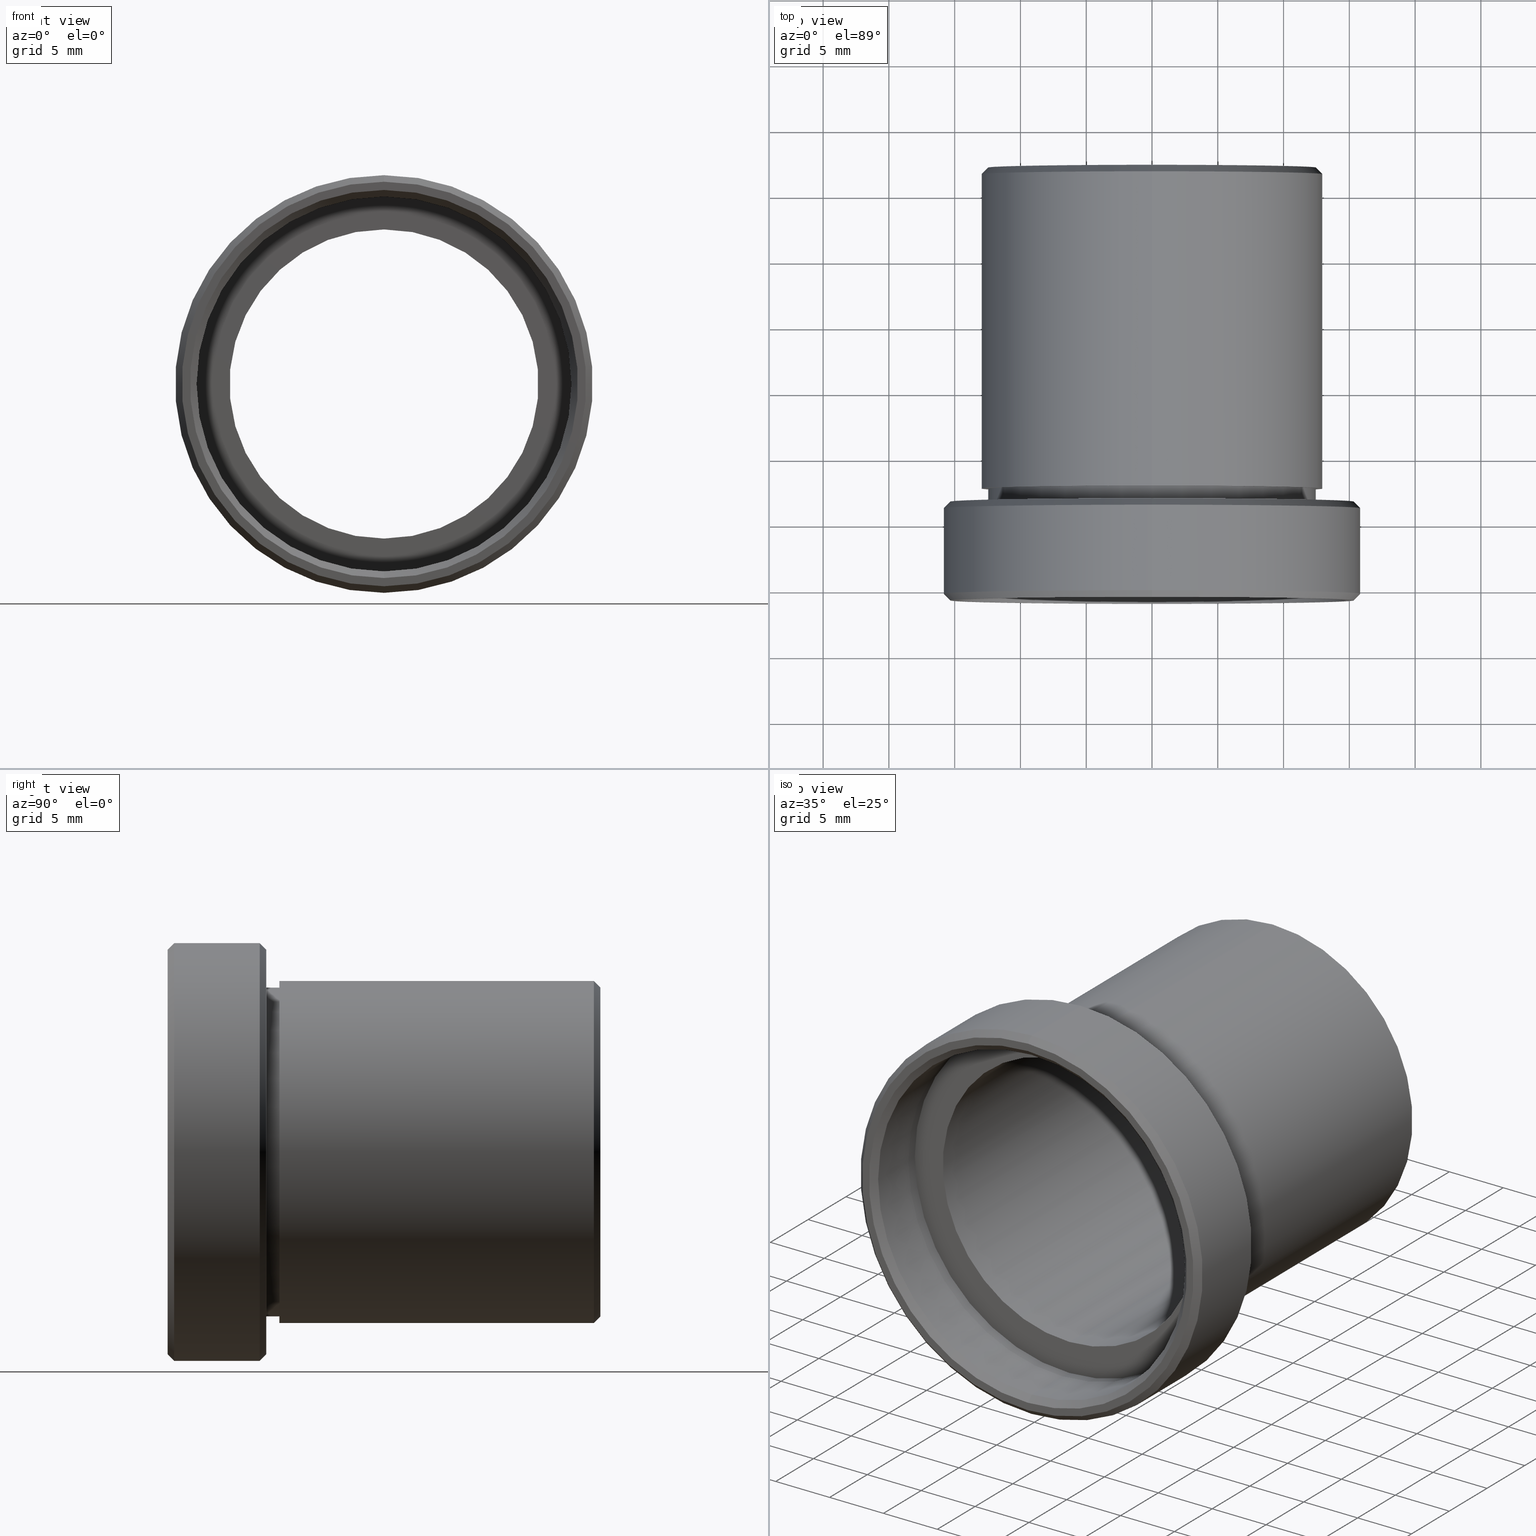
[diagram: canonical four-view strip — front | top / right | iso, engineering-drawing reading convention]
A machine part, canonical four-view strip (front | top / right | iso — engineering-drawing reading convention). The complete STEP part file that produces these views, byte-faithful:
ISO-10303-21;
HEADER;
FILE_DESCRIPTION (( 'STEP AP203' ),
    '1' );
FILE_NAME ('505004.STEP',
    '2019-09-12T03:27:38',
    ( '' ),
    ( '' ),
    'SwSTEP 2.0',
    'SolidWorks 2016',
    '' );
FILE_SCHEMA (( 'CONFIG_CONTROL_DESIGN' ));
ENDSEC;

DATA;
#1 = DIRECTION ( 'NONE',  ( -0.0000000000000000000, 1.000000000000000000, -0.0000000000000000000 ) ) ;
#2 = ORIENTED_EDGE ( 'NONE', *, *, #594, .T. ) ;
#3 = VECTOR ( 'NONE', #88, 1000.000000000000000 ) ;
#4 = EDGE_LOOP ( 'NONE', ( #743, #340, #2, #622 ) ) ;
#5 = AXIS2_PLACEMENT_3D ( 'NONE', #869, #455, #395 ) ;
#6 = CARTESIAN_POINT ( 'NONE',  ( 1.944126793646423200E-015, 1.142854174566894300, 15.87500000000000000 ) ) ;
#7 = CARTESIAN_POINT ( 'NONE',  ( 0.0000000000000000000, -5.857145825433105000, -14.75000000000000900 ) ) ;
#8 = AXIS2_PLACEMENT_3D ( 'NONE', #141, #829, #478 ) ;
#9 = LOCAL_TIME ( 11, 27, 38.00000000000000000, #555 ) ;
#10 = EDGE_LOOP ( 'NONE', ( #842, #157, #873, #12 ) ) ;
#11 = VECTOR ( 'NONE', #600, 1000.000000000000000 ) ;
#12 = ORIENTED_EDGE ( 'NONE', *, *, #623, .F. ) ;
#13 = CARTESIAN_POINT ( 'NONE',  ( 1.469576158976824500E-015, 26.54285417456689400, -11.75000000000000500 ) ) ;
#14 = ORIENTED_EDGE ( 'NONE', *, *, #305, .T. ) ;
#15 = DIRECTION ( 'NONE',  ( -0.0000000000000000000, 1.000000000000000000, -0.0000000000000000000 ) ) ;
#16 = DIRECTION ( 'NONE',  ( -0.0000000000000000000, 1.000000000000000000, -0.0000000000000000000 ) ) ;
#17 = CARTESIAN_POINT ( 'NONE',  ( 0.0000000000000000000, -5.857145825433105000, 0.0000000000000000000 ) ) ;
#18 = AXIS2_PLACEMENT_3D ( 'NONE', #755, #135, #201 ) ;
#19 = ORIENTED_EDGE ( 'NONE', *, *, #564, .T. ) ;
#20 = CIRCLE ( 'NONE', #782, 12.50000000000000500 ) ;
#21 = CLOSED_SHELL ( 'NONE', ( #234, #96, #778, #792, #514, #707, #639, #584, #99, #649, #362, #163, #439, #22, #519, #226, #169, #436, #716, #371, #654, #89, #504, #377, #590, #301, #574, #724 ) ) ;
#22 = ADVANCED_FACE ( 'NONE', ( #618 ), #659, .T. ) ;
#23 = EDGE_CURVE ( 'NONE', #723, #479, #738, .T. ) ;
#24 = DIRECTION ( 'NONE',  ( 0.0000000000000000000, 0.0000000000000000000, 1.000000000000000000 ) ) ;
#25 = MECHANICAL_CONTEXT ( 'NONE', #297, 'mechanical' ) ;
#26 = CC_DESIGN_PERSON_AND_ORGANIZATION_ASSIGNMENT ( #717, #307, ( #734 ) ) ;
#27 = DATE_AND_TIME ( #146, #325 ) ;
#28 = ORIENTED_EDGE ( 'NONE', *, *, #470, .F. ) ;
#29 = CIRCLE ( 'NONE', #35, 14.75000000000000900 ) ;
#30 =( NAMED_UNIT ( * ) PLANE_ANGLE_UNIT ( ) SI_UNIT ( $, .RADIAN. ) );
#31 = ORIENTED_EDGE ( 'NONE', *, *, #749, .T. ) ;
#32 = FACE_BOUND ( 'NONE', #57, .T. ) ;
#33 = ORIENTED_EDGE ( 'NONE', *, *, #704, .F. ) ;
#34 = PERSON_AND_ORGANIZATION_ROLE ( 'design_owner' ) ;
#35 = AXIS2_PLACEMENT_3D ( 'NONE', #259, #819, #612 ) ;
#36 = APPROVAL_ROLE ( '' ) ;
#37 = AXIS2_PLACEMENT_3D ( 'NONE', #776, #282, #705 ) ;
#38 = DIRECTION ( 'NONE',  ( -0.0000000000000000000, 1.000000000000000000, -0.0000000000000000000 ) ) ;
#39 = DATE_TIME_ROLE ( 'creation_date' ) ;
#40 = DIRECTION ( 'NONE',  ( 0.0000000000000000000, 0.0000000000000000000, 1.000000000000000000 ) ) ;
#41 = CONICAL_SURFACE ( 'NONE', #5, 15.87500000000000000, 0.7853981633974447300 ) ;
#42 = ORIENTED_EDGE ( 'NONE', *, *, #133, .T. ) ;
#43 = ORIENTED_EDGE ( 'NONE', *, *, #23, .F. ) ;
#44 = CARTESIAN_POINT ( 'NONE',  ( 0.0000000000000000000, 1.642854174566894800, 0.0000000000000000000 ) ) ;
#45 = DIRECTION ( 'NONE',  ( -0.0000000000000000000, 1.000000000000000000, -0.0000000000000000000 ) ) ;
#46 = AXIS2_PLACEMENT_3D ( 'NONE', #788, #517, #587 ) ;
#47 = DIRECTION ( 'NONE',  ( -0.0000000000000000000, 1.000000000000000000, -0.0000000000000000000 ) ) ;
#48 = DIRECTION ( 'NONE',  ( -0.0000000000000000000, 1.000000000000000000, -0.0000000000000000000 ) ) ;
#49 = PERSON_AND_ORGANIZATION ( #296, #794 ) ;
#50 = PERSON_AND_ORGANIZATION_ROLE ( 'creator' ) ;
#51 = EDGE_LOOP ( 'NONE', ( #207, #581, #472, #677 ) ) ;
#52 = EDGE_CURVE ( 'NONE', #189, #633, #71, .T. ) ;
#53 = LINE ( 'NONE', #686, #138 ) ;
#54 = CARTESIAN_POINT ( 'NONE',  ( 1.757368156776452400E-015, -0.3571458254331069700, -14.35000000000000500 ) ) ;
#55 = ORIENTED_EDGE ( 'NONE', *, *, #711, .F. ) ;
#56 = CARTESIAN_POINT ( 'NONE',  ( 0.0000000000000000000, 27.04285417456689400, 0.0000000000000000000 ) ) ;
#57 = EDGE_LOOP ( 'NONE', ( #754, #198 ) ) ;
#58 = AXIS2_PLACEMENT_3D ( 'NONE', #290, #356, #211 ) ;
#59 = DIRECTION ( 'NONE',  ( 0.0000000000000000000, 0.0000000000000000000, 1.000000000000000000 ) ) ;
#60 = CARTESIAN_POINT ( 'NONE',  ( 0.0000000000000000000, -5.357145825433104100, 0.0000000000000000000 ) ) ;
#61 = DIRECTION ( 'NONE',  ( -0.0000000000000000000, 1.000000000000000000, -0.0000000000000000000 ) ) ;
#62 = CARTESIAN_POINT ( 'NONE',  ( 0.0000000000000000000, 44.59859774529311900, 12.50000000000000500 ) ) ;
#63 = FACE_BOUND ( 'NONE', #216, .T. ) ;
#64 = CALENDAR_DATE ( 2019, 12, 9 ) ;
#65 = CARTESIAN_POINT ( 'NONE',  ( 0.0000000000000000000, 26.54285417456689100, 13.00000000000000400 ) ) ;
#66 = ORIENTED_EDGE ( 'NONE', *, *, #143, .F. ) ;
#67 = FACE_OUTER_BOUND ( 'NONE', #294, .T. ) ;
#68 = AXIS2_PLACEMENT_3D ( 'NONE', #275, #205, #836 ) ;
#69 = DIRECTION ( 'NONE',  ( 8.659560562354902000E-017, -0.7071067811865500200, 0.7071067811865450200 ) ) ;
#70 = LINE ( 'NONE', #376, #779 ) ;
#71 = LINE ( 'NONE', #844, #228 ) ;
#72 = LINE ( 'NONE', #640, #887 ) ;
#73 = VERTEX_POINT ( 'NONE', #871 ) ;
#74 = AXIS2_PLACEMENT_3D ( 'NONE', #485, #573, #350 ) ;
#75 = CARTESIAN_POINT ( 'NONE',  ( 1.944126793646423600E-015, -5.357145825433104100, -15.87500000000000400 ) ) ;
#76 = DIRECTION ( 'NONE',  ( 0.0000000000000000000, 0.0000000000000000000, 1.000000000000000000 ) ) ;
#77 = AXIS2_PLACEMENT_3D ( 'NONE', #280, #1, #553 ) ;
#78 = DIRECTION ( 'NONE',  ( 0.0000000000000000000, 0.0000000000000000000, 1.000000000000000000 ) ) ;
#79 = AXIS2_PLACEMENT_3D ( 'NONE', #17, #213, #703 ) ;
#80 = LOCAL_TIME ( 11, 27, 38.00000000000000000, #283 ) ;
#81 = CIRCLE ( 'NONE', #542, 15.87500000000000400 ) ;
#82 = CONICAL_SURFACE ( 'NONE', #79, 15.37500000000000400, 0.7853981633974482800 ) ;
#83 = ORIENTED_EDGE ( 'NONE', *, *, #450, .F. ) ;
#84 = VECTOR ( 'NONE', #895, 1000.000000000000000 ) ;
#85 = CARTESIAN_POINT ( 'NONE',  ( 1.438959988998140800E-015, 44.59859774529311900, -11.75000000000000500 ) ) ;
#86 = ORIENTED_EDGE ( 'NONE', *, *, #269, .T. ) ;
#87 = EDGE_CURVE ( 'NONE', #230, #94, #242, .T. ) ;
#88 = DIRECTION ( 'NONE',  ( 0.0000000000000000000, -0.7071067811865500200, -0.7071067811865450200 ) ) ;
#89 = ADVANCED_FACE ( 'NONE', ( #303 ), #265, .F. ) ;
#90 = DIRECTION ( 'NONE',  ( 0.0000000000000000000, 0.0000000000000000000, 1.000000000000000000 ) ) ;
#91 = LOCAL_TIME ( 11, 27, 38.00000000000000000, #274 ) ;
#92 = ORIENTED_EDGE ( 'NONE', *, *, #638, .F. ) ;
#93 = VECTOR ( 'NONE', #152, 1000.000000000000000 ) ;
#94 = VERTEX_POINT ( 'NONE', #609 ) ;
#95 = PERSON_AND_ORGANIZATION_ROLE ( 'design_owner' ) ;
#96 = ADVANCED_FACE ( 'NONE', ( #165 ), #41, .T. ) ;
#97 = CC_DESIGN_APPROVAL ( #747, ( #464 ) ) ;
#98 = CARTESIAN_POINT ( 'NONE',  ( 0.0000000000000000000, 1.142854174566894300, 15.87500000000000000 ) ) ;
#99 = ADVANCED_FACE ( 'NONE', ( #239 ), #839, .F. ) ;
#100 = CARTESIAN_POINT ( 'NONE',  ( 0.0000000000000000000, 1.142854174566894300, 0.0000000000000000000 ) ) ;
#101 = CIRCLE ( 'NONE', #109, 15.87500000000000000 ) ;
#102 = SHAPE_DEFINITION_REPRESENTATION ( #697, #223 ) ;
#103 = DIRECTION ( 'NONE',  ( 1.000000000000000000, 0.0000000000000000000, 0.0000000000000000000 ) ) ;
#104 = EDGE_LOOP ( 'NONE', ( #859, #140, #368, #888 ) ) ;
#105 = CIRCLE ( 'NONE', #651, 14.75000000000000900 ) ;
#106 = DIRECTION ( 'NONE',  ( 0.0000000000000000000, -0.0000000000000000000, -1.000000000000000000 ) ) ;
#107 = ORIENTED_EDGE ( 'NONE', *, *, #714, .F. ) ;
#108 = CARTESIAN_POINT ( 'NONE',  ( 1.745121688784979000E-015, -5.357145825433104100, 14.25000000000000500 ) ) ;
#109 = AXIS2_PLACEMENT_3D ( 'NONE', #100, #668, #178 ) ;
#110 = DIRECTION ( 'NONE',  ( 0.0000000000000000000, 0.0000000000000000000, -1.000000000000000000 ) ) ;
#111 = DIRECTION ( 'NONE',  ( -0.0000000000000000000, 1.000000000000000000, -0.0000000000000000000 ) ) ;
#112 = DIRECTION ( 'NONE',  ( 0.0000000000000000000, 0.0000000000000000000, 1.000000000000000000 ) ) ;
#113 = CARTESIAN_POINT ( 'NONE',  ( 14.25000000000000700, -1.357145825433105700, 0.0000000000000000000 ) ) ;
#114 = ORIENTED_EDGE ( 'NONE', *, *, #52, .T. ) ;
#115 = FACE_OUTER_BOUND ( 'NONE', #4, .T. ) ;
#116 = CARTESIAN_POINT ( 'NONE',  ( 13.00000000000000500, 2.642854174566895000, 0.0000000000000000000 ) ) ;
#117 = ORIENTED_EDGE ( 'NONE', *, *, #351, .F. ) ;
#118 = APPROVAL_STATUS ( 'not_yet_approved' ) ;
#119 = DIRECTION ( 'NONE',  ( 0.0000000000000000000, 0.0000000000000000000, 1.000000000000000000 ) ) ;
#120 = PLANE ( 'NONE',  #179 ) ;
#121 = AXIS2_PLACEMENT_3D ( 'NONE', #359, #15, #490 ) ;
#122 = CARTESIAN_POINT ( 'NONE',  ( 0.0000000000000000000, 44.59859774529311900, 14.35000000000000500 ) ) ;
#123 = DIRECTION ( 'NONE',  ( -0.0000000000000000000, 1.000000000000000000, -0.0000000000000000000 ) ) ;
#124 = CIRCLE ( 'NONE', #400, 14.25000000000000500 ) ;
#125 = AXIS2_PLACEMENT_3D ( 'NONE', #761, #134, #270 ) ;
#126 = COORDINATED_UNIVERSAL_TIME_OFFSET ( 8, 0, .AHEAD. ) ;
#127 = DIRECTION ( 'NONE',  ( 0.0000000000000000000, 0.0000000000000000000, 1.000000000000000000 ) ) ;
#128 = VERTEX_POINT ( 'NONE', #805 ) ;
#129 = LINE ( 'NONE', #820, #773 ) ;
#130 = VERTEX_POINT ( 'NONE', #246 ) ;
#131 = PRODUCT_DEFINITION_FORMATION_WITH_SPECIFIED_SOURCE ( '�κ�', '', #642, .NOT_KNOWN. ) ;
#132 = DIRECTION ( 'NONE',  ( 0.0000000000000000000, -0.7071067811865463500, -0.7071067811865487900 ) ) ;
#133 = EDGE_CURVE ( 'NONE', #633, #606, #656, .T. ) ;
#134 = DIRECTION ( 'NONE',  ( -0.0000000000000000000, 1.000000000000000000, -0.0000000000000000000 ) ) ;
#135 = DIRECTION ( 'NONE',  ( 0.0000000000000000000, -1.000000000000000000, 0.0000000000000000000 ) ) ;
#136 = CALENDAR_DATE ( 2019, 12, 9 ) ;
#137 = ORIENTED_EDGE ( 'NONE', *, *, #407, .F. ) ;
#138 = VECTOR ( 'NONE', #621, 1000.000000000000000 ) ;
#139 = AXIS2_PLACEMENT_3D ( 'NONE', #194, #268, #685 ) ;
#140 = ORIENTED_EDGE ( 'NONE', *, *, #202, .T. ) ;
#141 = CARTESIAN_POINT ( 'NONE',  ( 0.0000000000000000000, 44.59859774529311900, 0.0000000000000000000 ) ) ;
#142 = DIRECTION ( 'NONE',  ( -0.0000000000000000000, 1.000000000000000000, -0.0000000000000000000 ) ) ;
#143 = EDGE_CURVE ( 'NONE', #188, #525, #442, .T. ) ;
#144 = DIRECTION ( 'NONE',  ( -0.0000000000000000000, 1.000000000000000000, -0.0000000000000000000 ) ) ;
#145 = APPROVAL ( #576, 'δָ��' ) ;
#146 = CALENDAR_DATE ( 2019, 12, 9 ) ;
#147 = FACE_OUTER_BOUND ( 'NONE', #700, .T. ) ;
#148 = VERTEX_POINT ( 'NONE', #177 ) ;
#149 = CIRCLE ( 'NONE', #410, 15.37500000000000400 ) ;
#150 = VERTEX_POINT ( 'NONE', #731 ) ;
#151 = DIRECTION ( 'NONE',  ( -0.0000000000000000000, 1.000000000000000000, -0.0000000000000000000 ) ) ;
#152 = DIRECTION ( 'NONE',  ( -0.0000000000000000000, 1.000000000000000000, -0.0000000000000000000 ) ) ;
#153 = PERSON_AND_ORGANIZATION ( #296, #794 ) ;
#154 = VERTEX_POINT ( 'NONE', #451 ) ;
#155 = FACE_BOUND ( 'NONE', #423, .T. ) ;
#156 = CARTESIAN_POINT ( 'NONE',  ( 0.0000000000000000000, -0.3571458254331069700, 14.35000000000000500 ) ) ;
#157 = ORIENTED_EDGE ( 'NONE', *, *, #322, .T. ) ;
#158 = EDGE_CURVE ( 'NONE', #128, #718, #821, .T. ) ;
#159 = CARTESIAN_POINT ( 'NONE',  ( 0.0000000000000000000, 2.642854174566895900, 0.0000000000000000000 ) ) ;
#160 = DIRECTION ( 'NONE',  ( 0.0000000000000000000, 0.0000000000000000000, 1.000000000000000000 ) ) ;
#161 = PERSON_AND_ORGANIZATION ( #296, #794 ) ;
#162 = ORIENTED_EDGE ( 'NONE', *, *, #224, .F. ) ;
#163 = ADVANCED_FACE ( 'NONE', ( #284, #632 ), #605, .F. ) ;
#164 = ORIENTED_EDGE ( 'NONE', *, *, #494, .F. ) ;
#165 = FACE_OUTER_BOUND ( 'NONE', #276, .T. ) ;
#166 = EDGE_LOOP ( 'NONE', ( #556, #445, #209, #456 ) ) ;
#167 = DIRECTION ( 'NONE',  ( 0.0000000000000000000, -0.7071067811865450200, -0.7071067811865500200 ) ) ;
#168 = AXIS2_PLACEMENT_3D ( 'NONE', #113, #170, #106 ) ;
#169 = ADVANCED_FACE ( 'NONE', ( #742 ), #559, .F. ) ;
#170 = DIRECTION ( 'NONE',  ( 0.0000000000000000000, -1.000000000000000000, 0.0000000000000000000 ) ) ;
#171 = CARTESIAN_POINT ( 'NONE',  ( 0.0000000000000000000, 1.142854174566894300, 0.0000000000000000000 ) ) ;
#172 = CC_DESIGN_PERSON_AND_ORGANIZATION_ASSIGNMENT ( #252, #582, ( #131 ) ) ;
#173 = DATE_AND_TIME ( #353, #196 ) ;
#174 = ORIENTED_EDGE ( 'NONE', *, *, #515, .F. ) ;
#175 = FACE_BOUND ( 'NONE', #415, .T. ) ;
#176 = ORIENTED_EDGE ( 'NONE', *, *, #351, .T. ) ;
#177 = CARTESIAN_POINT ( 'NONE',  ( 0.0000000000000000000, -1.357145825433107900, 14.25000000000000700 ) ) ;
#178 = DIRECTION ( 'NONE',  ( 0.0000000000000000000, 0.0000000000000000000, 1.000000000000000000 ) ) ;
#179 = AXIS2_PLACEMENT_3D ( 'NONE', #267, #881, #608 ) ;
#180 = DIRECTION ( 'NONE',  ( -0.0000000000000000000, 1.000000000000000000, 0.0000000000000000000 ) ) ;
#181 = APPROVAL_ROLE ( '' ) ;
#182 = EDGE_CURVE ( 'NONE', #154, #607, #105, .T. ) ;
#183 = CARTESIAN_POINT ( 'NONE',  ( 0.0000000000000000000, 1.142854174566894300, 0.0000000000000000000 ) ) ;
#184 = PERSON_AND_ORGANIZATION ( #296, #794 ) ;
#185 = ORIENTED_EDGE ( 'NONE', *, *, #202, .F. ) ;
#186 = CYLINDRICAL_SURFACE ( 'NONE', #204, 14.25000000000000500 ) ;
#187 = CC_DESIGN_DATE_AND_TIME_ASSIGNMENT ( #567, #361, ( #464 ) ) ;
#188 = VERTEX_POINT ( 'NONE', #449 ) ;
#189 = VERTEX_POINT ( 'NONE', #530 ) ;
#190 = DIRECTION ( 'NONE',  ( -0.0000000000000000000, 1.000000000000000000, -0.0000000000000000000 ) ) ;
#191 = CARTESIAN_POINT ( 'NONE',  ( 0.0000000000000000000, 44.59859774529311900, 14.25000000000000500 ) ) ;
#192 = CARTESIAN_POINT ( 'NONE',  ( 0.0000000000000000000, 2.642854174566895900, 0.0000000000000000000 ) ) ;
#193 = CARTESIAN_POINT ( 'NONE',  ( 0.0000000000000000000, 27.04285417456689400, 12.25000000000000500 ) ) ;
#194 = CARTESIAN_POINT ( 'NONE',  ( 0.0000000000000000000, 27.04285417456689100, 0.0000000000000000000 ) ) ;
#195 = FACE_OUTER_BOUND ( 'NONE', #396, .T. ) ;
#196 = LOCAL_TIME ( 11, 27, 38.00000000000000000, #602 ) ;
#197 = CARTESIAN_POINT ( 'NONE',  ( 0.0000000000000000000, 44.59859774529311900, 0.0000000000000000000 ) ) ;
#198 = ORIENTED_EDGE ( 'NONE', *, *, #897, .T. ) ;
#199 = CIRCLE ( 'NONE', #58, 13.00000000000000500 ) ;
#200 = EDGE_LOOP ( 'NONE', ( #66, #31, #712, #83 ) ) ;
#201 = DIRECTION ( 'NONE',  ( 0.0000000000000000000, 0.0000000000000000000, -1.000000000000000000 ) ) ;
#202 = EDGE_CURVE ( 'NONE', #150, #783, #511, .T. ) ;
#203 = DIRECTION ( 'NONE',  ( 8.659560562354948900E-017, -0.7071067811865463500, 0.7071067811865487900 ) ) ;
#204 = AXIS2_PLACEMENT_3D ( 'NONE', #775, #493, #289 ) ;
#205 = DIRECTION ( 'NONE',  ( 0.0000000000000000000, -1.000000000000000000, 0.0000000000000000000 ) ) ;
#206 = COORDINATED_UNIVERSAL_TIME_OFFSET ( 8, 0, .AHEAD. ) ;
#207 = ORIENTED_EDGE ( 'NONE', *, *, #614, .F. ) ;
#208 = FACE_BOUND ( 'NONE', #469, .T. ) ;
#209 = ORIENTED_EDGE ( 'NONE', *, *, #352, .F. ) ;
#210 = ORIENTED_EDGE ( 'NONE', *, *, #224, .T. ) ;
#211 = DIRECTION ( 'NONE',  ( 0.0000000000000000000, 0.0000000000000000000, 1.000000000000000000 ) ) ;
#212 = EDGE_CURVE ( 'NONE', #130, #863, #349, .T. ) ;
#213 = DIRECTION ( 'NONE',  ( -0.0000000000000000000, 1.000000000000000000, -0.0000000000000000000 ) ) ;
#214 = FACE_OUTER_BOUND ( 'NONE', #104, .T. ) ;
#215 = PERSON_AND_ORGANIZATION ( #296, #794 ) ;
#216 = EDGE_LOOP ( 'NONE', ( #331, #137 ) ) ;
#217 = EDGE_CURVE ( 'NONE', #606, #73, #262, .T. ) ;
#218 = VECTOR ( 'NONE', #884, 1000.000000000000000 ) ;
#219 = ORIENTED_EDGE ( 'NONE', *, *, #614, .T. ) ;
#220 = DIRECTION ( 'NONE',  ( 0.0000000000000000000, 0.0000000000000000000, 1.000000000000000000 ) ) ;
#221 = AXIS2_PLACEMENT_3D ( 'NONE', #551, #409, #545 ) ;
#222 = CARTESIAN_POINT ( 'NONE',  ( 1.944126793646423200E-015, 1.142854174566894300, -15.87500000000000000 ) ) ;
#223 = ADVANCED_BREP_SHAPE_REPRESENTATION ( '505004', ( #806, #790 ), #271 ) ;
#224 = EDGE_CURVE ( 'NONE', #364, #723, #402, .T. ) ;
#225 = APPROVAL_STATUS ( 'not_yet_approved' ) ;
#226 = ADVANCED_FACE ( 'NONE', ( #67 ), #592, .F. ) ;
#227 = APPROVAL_PERSON_ORGANIZATION ( #708, #673, #650 ) ;
#228 = VECTOR ( 'NONE', #16, 1000.000000000000000 ) ;
#229 = LINE ( 'NONE', #391, #218 ) ;
#230 = VERTEX_POINT ( 'NONE', #65 ) ;
#231 = EDGE_CURVE ( 'NONE', #578, #863, #129, .T. ) ;
#232 = EDGE_LOOP ( 'NONE', ( #886, #164, #114, #42 ) ) ;
#233 = CC_DESIGN_APPROVAL ( #145, ( #131 ) ) ;
#234 = ADVANCED_FACE ( 'NONE', ( #701 ), #722, .T. ) ;
#235 = CARTESIAN_POINT ( 'NONE',  ( 0.0000000000000000000, 26.54285417456689100, 0.0000000000000000000 ) ) ;
#236 = APPROVAL_ROLE ( '' ) ;
#237 = EDGE_CURVE ( 'NONE', #148, #256, #329, .T. ) ;
#238 = APPLICATION_PROTOCOL_DEFINITION ( 'international standard', 'config_control_design', 1994, #785 ) ;
#239 = FACE_OUTER_BOUND ( 'NONE', #382, .T. ) ;
#240 = LOCAL_TIME ( 11, 27, 38.00000000000000000, #126 ) ;
#241 = VERTEX_POINT ( 'NONE', #544 ) ;
#242 = CIRCLE ( 'NONE', #787, 13.00000000000000400 ) ;
#243 = ORIENTED_EDGE ( 'NONE', *, *, #308, .T. ) ;
#244 = CARTESIAN_POINT ( 'NONE',  ( 0.0000000000000000000, 27.04285417456689100, -12.50000000000000000 ) ) ;
#245 = AXIS2_PLACEMENT_3D ( 'NONE', #304, #38, #595 ) ;
#246 = CARTESIAN_POINT ( 'NONE',  ( 0.0000000000000000000, 2.642854174566895900, 12.50000000000000500 ) ) ;
#247 = DIRECTION ( 'NONE',  ( 0.0000000000000000000, 0.0000000000000000000, 1.000000000000000000 ) ) ;
#248 = CARTESIAN_POINT ( 'NONE',  ( 0.0000000000000000000, 26.54285417456689100, 0.0000000000000000000 ) ) ;
#249 = DIRECTION ( 'NONE',  ( 0.0000000000000000000, 0.0000000000000000000, -1.000000000000000000 ) ) ;
#250 = PERSON_AND_ORGANIZATION ( #296, #794 ) ;
#251 = AXIS2_PLACEMENT_3D ( 'NONE', #428, #570, #78 ) ;
#252 = PERSON_AND_ORGANIZATION ( #296, #794 ) ;
#253 = ORIENTED_EDGE ( 'NONE', *, *, #759, .T. ) ;
#254 = CYLINDRICAL_SURFACE ( 'NONE', #77, 11.75000000000000500 ) ;
#255 = DIRECTION ( 'NONE',  ( 8.659560562354931600E-017, 0.7071067811865475700, -0.7071067811865474600 ) ) ;
#256 = VERTEX_POINT ( 'NONE', #263 ) ;
#257 = CARTESIAN_POINT ( 'NONE',  ( 0.0000000000000000000, 27.04285417456689400, 0.0000000000000000000 ) ) ;
#258 = DIRECTION ( 'NONE',  ( 0.0000000000000000000, 0.0000000000000000000, 1.000000000000000000 ) ) ;
#259 = CARTESIAN_POINT ( 'NONE',  ( 0.0000000000000000000, -5.857145825433105000, 0.0000000000000000000 ) ) ;
#260 = AXIS2_PLACEMENT_3D ( 'NONE', #56, #386, #877 ) ;
#261 = CARTESIAN_POINT ( 'NONE',  ( 1.882894453689056100E-015, -5.857145825433105000, -15.37500000000000400 ) ) ;
#262 = LINE ( 'NONE', #540, #466 ) ;
#263 = CARTESIAN_POINT ( 'NONE',  ( 1.745121688784979400E-015, -1.357145825433107900, -14.25000000000000900 ) ) ;
#264 = ORIENTED_EDGE ( 'NONE', *, *, #846, .T. ) ;
#265 = CONICAL_SURFACE ( 'NONE', #695, 14.25000000000000500, 0.7853981633974518300 ) ;
#266 = VERTEX_POINT ( 'NONE', #896 ) ;
#267 = CARTESIAN_POINT ( 'NONE',  ( 15.37500000000000400, -5.857145825433104100, 0.0000000000000000000 ) ) ;
#268 = DIRECTION ( 'NONE',  ( -0.0000000000000000000, 1.000000000000000000, -0.0000000000000000000 ) ) ;
#269 = EDGE_CURVE ( 'NONE', #397, #528, #486, .T. ) ;
#270 = DIRECTION ( 'NONE',  ( 0.0000000000000000000, 0.0000000000000000000, 1.000000000000000000 ) ) ;
#271 =( GEOMETRIC_REPRESENTATION_CONTEXT ( 3 ) GLOBAL_UNCERTAINTY_ASSIGNED_CONTEXT ( ( #619 ) ) GLOBAL_UNIT_ASSIGNED_CONTEXT ( ( #789, #30, #725 ) ) REPRESENTATION_CONTEXT ( 'NONE', 'WORKASPACE' ) );
#272 = CARTESIAN_POINT ( 'NONE',  ( 0.0000000000000000000, 1.642854174566894800, 0.0000000000000000000 ) ) ;
#273 = AXIS2_PLACEMENT_3D ( 'NONE', #197, #142, #554 ) ;
#274 = COORDINATED_UNIVERSAL_TIME_OFFSET ( 8, 0, .AHEAD. ) ;
#275 = CARTESIAN_POINT ( 'NONE',  ( 12.50000000000000500, 1.642854174566894800, 0.0000000000000000000 ) ) ;
#276 = EDGE_LOOP ( 'NONE', ( #709, #219, #593, #291 ) ) ;
#277 = FACE_OUTER_BOUND ( 'NONE', #346, .T. ) ;
#278 = ORIENTED_EDGE ( 'NONE', *, *, #744, .T. ) ;
#279 = EDGE_CURVE ( 'NONE', #525, #188, #124, .T. ) ;
#280 = CARTESIAN_POINT ( 'NONE',  ( 0.0000000000000000000, 44.59859774529311900, 0.0000000000000000000 ) ) ;
#281 = APPROVAL ( #453, 'δָ��' ) ;
#282 = DIRECTION ( 'NONE',  ( -0.0000000000000000000, 1.000000000000000000, -0.0000000000000000000 ) ) ;
#283 = COORDINATED_UNIVERSAL_TIME_OFFSET ( 8, 0, .AHEAD. ) ;
#284 = FACE_OUTER_BOUND ( 'NONE', #580, .T. ) ;
#285 = APPROVAL_DATE_TIME ( #467, #673 ) ;
#286 = ORIENTED_EDGE ( 'NONE', *, *, #470, .T. ) ;
#287 = CONICAL_SURFACE ( 'NONE', #620, 15.87500000000000000, 0.7853981633974447300 ) ;
#288 = CARTESIAN_POINT ( 'NONE',  ( 0.0000000000000000000, 27.04285417456689400, 0.0000000000000000000 ) ) ;
#289 = DIRECTION ( 'NONE',  ( 0.0000000000000000000, 0.0000000000000000000, 1.000000000000000000 ) ) ;
#290 = CARTESIAN_POINT ( 'NONE',  ( 0.0000000000000000000, 2.642854174566895900, 0.0000000000000000000 ) ) ;
#291 = ORIENTED_EDGE ( 'NONE', *, *, #688, .F. ) ;
#292 = EDGE_CURVE ( 'NONE', #784, #831, #101, .T. ) ;
#293 = VECTOR ( 'NONE', #132, 1000.000000000000000 ) ;
#294 = EDGE_LOOP ( 'NONE', ( #510, #366, #568, #278 ) ) ;
#295 = CC_DESIGN_PERSON_AND_ORGANIZATION_ASSIGNMENT ( #589, #95, ( #642 ) ) ;
#296 = PERSON ( 'δָ��', 'δָ��', 'δָ��', ('δָ��'), ('δָ��'), ('δָ��') ) ;
#297 = APPLICATION_CONTEXT ( 'configuration controlled 3d designs of mechanical parts and assemblies' ) ;
#298 = LINE ( 'NONE', #108, #769 ) ;
#299 = PERSON_AND_ORGANIZATION ( #296, #794 ) ;
#300 = CARTESIAN_POINT ( 'NONE',  ( 1.757368156776452400E-015, -1.357145825433107900, -14.35000000000000500 ) ) ;
#301 = ADVANCED_FACE ( 'NONE', ( #681 ), #287, .T. ) ;
#302 = ORIENTED_EDGE ( 'NONE', *, *, #332, .T. ) ;
#303 = FACE_OUTER_BOUND ( 'NONE', #541, .T. ) ;
#304 = CARTESIAN_POINT ( 'NONE',  ( 0.0000000000000000000, -1.357145825433107900, 0.0000000000000000000 ) ) ;
#305 = EDGE_CURVE ( 'NONE', #718, #128, #588, .T. ) ;
#306 = ORIENTED_EDGE ( 'NONE', *, *, #87, .T. ) ;
#307 = PERSON_AND_ORGANIZATION_ROLE ( 'creator' ) ;
#308 = EDGE_CURVE ( 'NONE', #528, #397, #793, .T. ) ;
#309 = PLANE ( 'NONE',  #756 ) ;
#310 = CARTESIAN_POINT ( 'NONE',  ( 0.0000000000000000000, -5.357145825433104100, 0.0000000000000000000 ) ) ;
#311 = AXIS2_PLACEMENT_3D ( 'NONE', #720, #648, #502 ) ;
#312 = DATE_TIME_ROLE ( 'classification_date' ) ;
#313 = CARTESIAN_POINT ( 'NONE',  ( 1.944126793646423200E-015, 44.59859774529311900, -15.87500000000000000 ) ) ;
#314 = LOCAL_TIME ( 11, 27, 38.00000000000000000, #689 ) ;
#315 = ORIENTED_EDGE ( 'NONE', *, *, #231, .T. ) ;
#316 = VECTOR ( 'NONE', #767, 1000.000000000000000 ) ;
#317 = CARTESIAN_POINT ( 'NONE',  ( 0.0000000000000000000, 1.642854174566894800, 0.0000000000000000000 ) ) ;
#318 = ORIENTED_EDGE ( 'NONE', *, *, #450, .T. ) ;
#319 = DIRECTION ( 'NONE',  ( -0.0000000000000000000, 1.000000000000000000, -0.0000000000000000000 ) ) ;
#320 = AXIS2_PLACEMENT_3D ( 'NONE', #192, #190, #59 ) ;
#321 = DIRECTION ( 'NONE',  ( -0.0000000000000000000, 1.000000000000000000, 0.0000000000000000000 ) ) ;
#322 = EDGE_CURVE ( 'NONE', #682, #784, #471, .T. ) ;
#323 = CARTESIAN_POINT ( 'NONE',  ( 0.0000000000000000000, 44.59859774529311900, 0.0000000000000000000 ) ) ;
#324 = AXIS2_PLACEMENT_3D ( 'NONE', #848, #427, #76 ) ;
#325 = LOCAL_TIME ( 11, 27, 38.00000000000000000, #206 ) ;
#326 = ORIENTED_EDGE ( 'NONE', *, *, #601, .F. ) ;
#327 = VECTOR ( 'NONE', #69, 1000.000000000000000 ) ;
#328 = EDGE_LOOP ( 'NONE', ( #780, #435, #210, #666 ) ) ;
#329 = CIRCLE ( 'NONE', #426, 14.25000000000000700 ) ;
#330 = DIRECTION ( 'NONE',  ( 8.659560562354931600E-017, 0.7071067811865475700, -0.7071067811865474600 ) ) ;
#331 = ORIENTED_EDGE ( 'NONE', *, *, #237, .F. ) ;
#332 = EDGE_CURVE ( 'NONE', #364, #813, #615, .T. ) ;
#333 = CARTESIAN_POINT ( 'NONE',  ( 0.0000000000000000000, 27.04285417456689400, 0.0000000000000000000 ) ) ;
#334 = CARTESIAN_POINT ( 'NONE',  ( 1.438959988998140800E-015, -0.3571458254331069700, -11.75000000000000500 ) ) ;
#335 = CARTESIAN_POINT ( 'NONE',  ( 0.0000000000000000000, -5.857145825433105000, 0.0000000000000000000 ) ) ;
#336 = AXIS2_PLACEMENT_3D ( 'NONE', #60, #672, #684 ) ;
#337 = COORDINATED_UNIVERSAL_TIME_OFFSET ( 8, 0, .AHEAD. ) ;
#338 = ORIENTED_EDGE ( 'NONE', *, *, #797, .T. ) ;
#339 = VECTOR ( 'NONE', #203, 1000.000000000000000 ) ;
#340 = ORIENTED_EDGE ( 'NONE', *, *, #732, .T. ) ;
#341 = CARTESIAN_POINT ( 'NONE',  ( 1.592040838891559500E-015, 26.54285417456689100, 13.00000000000000400 ) ) ;
#342 = EDGE_CURVE ( 'NONE', #783, #150, #149, .T. ) ;
#343 = CC_DESIGN_PERSON_AND_ORGANIZATION_ASSIGNMENT ( #215, #369, ( #464 ) ) ;
#344 = CALENDAR_DATE ( 2019, 12, 9 ) ;
#345 = DIRECTION ( 'NONE',  ( -0.0000000000000000000, 1.000000000000000000, -0.0000000000000000000 ) ) ;
#346 = EDGE_LOOP ( 'NONE', ( #491, #752, #306, #28 ) ) ;
#347 = CYLINDRICAL_SURFACE ( 'NONE', #857, 15.87500000000000000 ) ;
#348 = ORIENTED_EDGE ( 'NONE', *, *, #292, .F. ) ;
#349 = CIRCLE ( 'NONE', #320, 12.50000000000000500 ) ;
#350 = DIRECTION ( 'NONE',  ( 0.0000000000000000000, 0.0000000000000000000, 1.000000000000000000 ) ) ;
#351 = EDGE_CURVE ( 'NONE', #525, #154, #298, .T. ) ;
#352 = EDGE_CURVE ( 'NONE', #512, #682, #81, .T. ) ;
#353 = CALENDAR_DATE ( 2019, 12, 9 ) ;
#354 = EDGE_LOOP ( 'NONE', ( #625, #185 ) ) ;
#355 = CIRCLE ( 'NONE', #484, 14.35000000000000500 ) ;
#356 = DIRECTION ( 'NONE',  ( -0.0000000000000000000, 1.000000000000000000, -0.0000000000000000000 ) ) ;
#357 = SECURITY_CLASSIFICATION ( '', '', #372 ) ;
#358 = ORIENTED_EDGE ( 'NONE', *, *, #548, .F. ) ;
#359 = CARTESIAN_POINT ( 'NONE',  ( 0.0000000000000000000, -5.357145825433104100, 0.0000000000000000000 ) ) ;
#360 = AXIS2_PLACEMENT_3D ( 'NONE', #690, #758, #834 ) ;
#361 = DATE_TIME_ROLE ( 'creation_date' ) ;
#362 = ADVANCED_FACE ( 'NONE', ( #421 ), #823, .T. ) ;
#363 = DATE_AND_TIME ( #344, #9 ) ;
#364 = VERTEX_POINT ( 'NONE', #529 ) ;
#365 = CYLINDRICAL_SURFACE ( 'NONE', #324, 14.35000000000000500 ) ;
#366 = ORIENTED_EDGE ( 'NONE', *, *, #133, .F. ) ;
#367 = FACE_OUTER_BOUND ( 'NONE', #702, .T. ) ;
#368 = ORIENTED_EDGE ( 'NONE', *, *, #475, .T. ) ;
#369 = PERSON_AND_ORGANIZATION_ROLE ( 'creator' ) ;
#370 = CC_DESIGN_PERSON_AND_ORGANIZATION_ASSIGNMENT ( #696, #878, ( #627 ) ) ;
#371 = ADVANCED_FACE ( 'NONE', ( #63, #195 ), #655, .F. ) ;
#372 = SECURITY_CLASSIFICATION_LEVEL ( 'unclassified' ) ;
#373 = EDGE_CURVE ( 'NONE', #813, #479, #889, .T. ) ;
#374 = DIRECTION ( 'NONE',  ( -0.0000000000000000000, 1.000000000000000000, -0.0000000000000000000 ) ) ;
#375 = DIRECTION ( 'NONE',  ( 0.0000000000000000000, -1.000000000000000000, 0.0000000000000000000 ) ) ;
#376 = CARTESIAN_POINT ( 'NONE',  ( 1.592040838891559700E-015, 44.59859774529311900, -13.00000000000000500 ) ) ;
#377 = ADVANCED_FACE ( 'NONE', ( #214 ), #446, .T. ) ;
#378 = CARTESIAN_POINT ( 'NONE',  ( 1.757368156776452400E-015, 44.59859774529311900, -14.35000000000000500 ) ) ;
#379 = DIRECTION ( 'NONE',  ( 0.0000000000000000000, 0.0000000000000000000, 1.000000000000000000 ) ) ;
#380 = FACE_OUTER_BOUND ( 'NONE', #876, .T. ) ;
#381 = DATE_AND_TIME ( #546, #840 ) ;
#382 = EDGE_LOOP ( 'NONE', ( #643, #414, #796, #772 ) ) ;
#383 = FACE_OUTER_BOUND ( 'NONE', #354, .T. ) ;
#384 = AXIS2_PLACEMENT_3D ( 'NONE', #317, #45, #534 ) ;
#385 = ORIENTED_EDGE ( 'NONE', *, *, #797, .F. ) ;
#386 = DIRECTION ( 'NONE',  ( -0.0000000000000000000, 1.000000000000000000, -0.0000000000000000000 ) ) ;
#387 = DIRECTION ( 'NONE',  ( 0.0000000000000000000, 0.0000000000000000000, 1.000000000000000000 ) ) ;
#388 = DIRECTION ( 'NONE',  ( 0.0000000000000000000, 0.0000000000000000000, 1.000000000000000000 ) ) ;
#389 = DIRECTION ( 'NONE',  ( 0.0000000000000000000, -1.000000000000000000, 0.0000000000000000000 ) ) ;
#390 = CC_DESIGN_DATE_AND_TIME_ASSIGNMENT ( #27, #39, ( #882 ) ) ;
#391 = CARTESIAN_POINT ( 'NONE',  ( 0.0000000000000000000, -5.857145825433105000, 15.37500000000000400 ) ) ;
#392 = LINE ( 'NONE', #583, #477 ) ;
#393 = ORIENTED_EDGE ( 'NONE', *, *, #143, .T. ) ;
#394 = FACE_OUTER_BOUND ( 'NONE', #891, .T. ) ;
#395 = DIRECTION ( 'NONE',  ( 0.0000000000000000000, 0.0000000000000000000, -1.000000000000000000 ) ) ;
#396 = EDGE_LOOP ( 'NONE', ( #302, #558 ) ) ;
#397 = VERTEX_POINT ( 'NONE', #244 ) ;
#398 = CARTESIAN_POINT ( 'NONE',  ( 0.0000000000000000000, -5.357145825433104100, 15.87500000000000400 ) ) ;
#399 = PLANE ( 'NONE',  #523 ) ;
#400 = AXIS2_PLACEMENT_3D ( 'NONE', #875, #802, #387 ) ;
#401 = DIRECTION ( 'NONE',  ( 0.0000000000000000000, -1.000000000000000000, 0.0000000000000000000 ) ) ;
#402 = LINE ( 'NONE', #122, #751 ) ;
#403 = PERSON_AND_ORGANIZATION ( #296, #794 ) ;
#404 = ORIENTED_EDGE ( 'NONE', *, *, #814, .F. ) ;
#405 = CIRCLE ( 'NONE', #770, 13.00000000000000500 ) ;
#406 = ORIENTED_EDGE ( 'NONE', *, *, #269, .F. ) ;
#407 = EDGE_CURVE ( 'NONE', #256, #148, #617, .T. ) ;
#408 = CC_DESIGN_PERSON_AND_ORGANIZATION_ASSIGNMENT ( #657, #786, ( #357 ) ) ;
#409 = DIRECTION ( 'NONE',  ( -0.0000000000000000000, 1.000000000000000000, -0.0000000000000000000 ) ) ;
#410 = AXIS2_PLACEMENT_3D ( 'NONE', #518, #598, #454 ) ;
#411 = PLANE ( 'NONE',  #68 ) ;
#412 = ORIENTED_EDGE ( 'NONE', *, *, #182, .F. ) ;
#413 = CIRCLE ( 'NONE', #74, 14.35000000000000500 ) ;
#414 = ORIENTED_EDGE ( 'NONE', *, *, #217, .T. ) ;
#415 = EDGE_LOOP ( 'NONE', ( #497, #174 ) ) ;
#416 = CC_DESIGN_SECURITY_CLASSIFICATION ( #627, ( #734 ) ) ;
#417 = DESIGN_CONTEXT ( 'detailed design', #785, 'design' ) ;
#418 = DIRECTION ( 'NONE',  ( -0.0000000000000000000, 1.000000000000000000, -0.0000000000000000000 ) ) ;
#419 = EDGE_CURVE ( 'NONE', #831, #784, #489, .T. ) ;
#420 = DIRECTION ( 'NONE',  ( -0.0000000000000000000, 1.000000000000000000, -0.0000000000000000000 ) ) ;
#421 = FACE_OUTER_BOUND ( 'NONE', #694, .T. ) ;
#422 = APPROVAL_PERSON_ORGANIZATION ( #299, #747, #866 ) ;
#423 = EDGE_LOOP ( 'NONE', ( #536, #547 ) ) ;
#424 = LINE ( 'NONE', #261, #634 ) ;
#425 = ORIENTED_EDGE ( 'NONE', *, *, #322, .F. ) ;
#426 = AXIS2_PLACEMENT_3D ( 'NONE', #468, #817, #613 ) ;
#427 = DIRECTION ( 'NONE',  ( -0.0000000000000000000, 1.000000000000000000, -0.0000000000000000000 ) ) ;
#428 = CARTESIAN_POINT ( 'NONE',  ( 0.0000000000000000000, 26.54285417456689100, 0.0000000000000000000 ) ) ;
#429 = EDGE_CURVE ( 'NONE', #150, #682, #424, .T. ) ;
#430 = COORDINATED_UNIVERSAL_TIME_OFFSET ( 8, 0, .AHEAD. ) ;
#431 = ORIENTED_EDGE ( 'NONE', *, *, #564, .F. ) ;
#432 = CYLINDRICAL_SURFACE ( 'NONE', #273, 15.87500000000000000 ) ;
#433 = CARTESIAN_POINT ( 'NONE',  ( 1.530808498934192100E-015, 2.642854174566895900, -12.50000000000000500 ) ) ;
#434 = CC_DESIGN_PERSON_AND_ORGANIZATION_ASSIGNMENT ( #161, #599, ( #734 ) ) ;
#435 = ORIENTED_EDGE ( 'NONE', *, *, #332, .F. ) ;
#436 = ADVANCED_FACE ( 'NONE', ( #380, #32 ), #309, .F. ) ;
#437 = DIRECTION ( 'NONE',  ( 0.0000000000000000000, 0.0000000000000000000, 1.000000000000000000 ) ) ;
#438 = CARTESIAN_POINT ( 'NONE',  ( 0.0000000000000000000, 0.0000000000000000000, 0.0000000000000000000 ) ) ;
#439 = ADVANCED_FACE ( 'NONE', ( #367 ), #539, .T. ) ;
#440 = APPLICATION_PROTOCOL_DEFINITION ( 'international standard', 'config_control_design', 1994, #508 ) ;
#441 = DIRECTION ( 'NONE',  ( -0.0000000000000000000, 1.000000000000000000, -0.0000000000000000000 ) ) ;
#442 = CIRCLE ( 'NONE', #503, 14.25000000000000500 ) ;
#443 = AXIS2_PLACEMENT_3D ( 'NONE', #235, #375, #801 ) ;
#444 = CIRCLE ( 'NONE', #509, 11.75000000000000500 ) ;
#445 = ORIENTED_EDGE ( 'NONE', *, *, #429, .T. ) ;
#446 = CONICAL_SURFACE ( 'NONE', #585, 15.37500000000000400, 0.7853981633974482800 ) ;
#447 = ORIENTED_EDGE ( 'NONE', *, *, #158, .T. ) ;
#448 = DIRECTION ( 'NONE',  ( -0.0000000000000000000, 1.000000000000000000, -0.0000000000000000000 ) ) ;
#449 = CARTESIAN_POINT ( 'NONE',  ( 1.745121688784979000E-015, -5.357145825433104100, -14.25000000000000500 ) ) ;
#450 = EDGE_CURVE ( 'NONE', #525, #148, #862, .T. ) ;
#451 = CARTESIAN_POINT ( 'NONE',  ( 1.806354028742347400E-015, -5.857145825433105000, 14.75000000000000900 ) ) ;
#452 = PRODUCT_RELATED_PRODUCT_CATEGORY ( 'detail', '', ( #642 ) ) ;
#453 = APPROVAL_STATUS ( 'not_yet_approved' ) ;
#454 = DIRECTION ( 'NONE',  ( 0.0000000000000000000, 0.0000000000000000000, 1.000000000000000000 ) ) ;
#455 = DIRECTION ( 'NONE',  ( 0.0000000000000000000, -1.000000000000000000, 0.0000000000000000000 ) ) ;
#456 = ORIENTED_EDGE ( 'NONE', *, *, #475, .F. ) ;
#457 = CIRCLE ( 'NONE', #251, 13.00000000000000400 ) ;
#458 = AXIS2_PLACEMENT_3D ( 'NONE', #272, #345, #837 ) ;
#459 = ORIENTED_EDGE ( 'NONE', *, *, #623, .T. ) ;
#460 = CARTESIAN_POINT ( 'NONE',  ( 0.0000000000000000000, -1.357145825433107900, 0.0000000000000000000 ) ) ;
#461 = DIRECTION ( 'NONE',  ( 0.0000000000000000000, -1.000000000000000000, 0.0000000000000000000 ) ) ;
#462 = DIRECTION ( 'NONE',  ( -0.0000000000000000000, 1.000000000000000000, -0.0000000000000000000 ) ) ;
#463 = DIRECTION ( 'NONE',  ( 0.0000000000000000000, 0.0000000000000000000, 1.000000000000000000 ) ) ;
#464 = PRODUCT_DEFINITION ( 'δ֪', '', #131, #417 ) ;
#465 = CARTESIAN_POINT ( 'NONE',  ( 12.25000000000000500, 27.04285417456689400, 0.0000000000000000000 ) ) ;
#466 = VECTOR ( 'NONE', #330, 1000.000000000000000 ) ;
#467 = DATE_AND_TIME ( #577, #760 ) ;
#468 = CARTESIAN_POINT ( 'NONE',  ( 0.0000000000000000000, -1.357145825433107900, 0.0000000000000000000 ) ) ;
#469 = EDGE_LOOP ( 'NONE', ( #92, #326 ) ) ;
#470 = EDGE_CURVE ( 'NONE', #397, #94, #798, .T. ) ;
#471 = LINE ( 'NONE', #313, #843 ) ;
#472 = ORIENTED_EDGE ( 'NONE', *, *, #688, .T. ) ;
#473 = DIRECTION ( 'NONE',  ( 0.0000000000000000000, -0.0000000000000000000, -1.000000000000000000 ) ) ;
#474 = DIRECTION ( 'NONE',  ( 0.0000000000000000000, 0.0000000000000000000, 1.000000000000000000 ) ) ;
#475 = EDGE_CURVE ( 'NONE', #783, #512, #229, .T. ) ;
#476 = CARTESIAN_POINT ( 'NONE',  ( 0.0000000000000000000, 26.54285417456689400, 11.75000000000000500 ) ) ;
#477 = VECTOR ( 'NONE', #167, 1000.000000000000000 ) ;
#478 = DIRECTION ( 'NONE',  ( 0.0000000000000000000, 0.0000000000000000000, 1.000000000000000000 ) ) ;
#479 = VERTEX_POINT ( 'NONE', #54 ) ;
#480 = LINE ( 'NONE', #341, #339 ) ;
#481 = ORIENTED_EDGE ( 'NONE', *, *, #373, .T. ) ;
#482 = EDGE_CURVE ( 'NONE', #633, #845, #852, .T. ) ;
#483 = CARTESIAN_POINT ( 'NONE',  ( 0.0000000000000000000, 1.142854174566894300, -15.87500000000000000 ) ) ;
#484 = AXIS2_PLACEMENT_3D ( 'NONE', #629, #418, #706 ) ;
#485 = CARTESIAN_POINT ( 'NONE',  ( 0.0000000000000000000, -0.3571458254331069700, 0.0000000000000000000 ) ) ;
#486 = CIRCLE ( 'NONE', #139, 12.50000000000000000 ) ;
#487 = FACE_OUTER_BOUND ( 'NONE', #488, .T. ) ;
#488 = EDGE_LOOP ( 'NONE', ( #658, #561, #19, #603 ) ) ;
#489 = CIRCLE ( 'NONE', #635, 15.87500000000000000 ) ;
#490 = DIRECTION ( 'NONE',  ( 0.0000000000000000000, 0.0000000000000000000, 1.000000000000000000 ) ) ;
#491 = ORIENTED_EDGE ( 'NONE', *, *, #308, .F. ) ;
#492 = EDGE_CURVE ( 'NONE', #607, #154, #29, .T. ) ;
#493 = DIRECTION ( 'NONE',  ( -0.0000000000000000000, 1.000000000000000000, -0.0000000000000000000 ) ) ;
#494 = EDGE_CURVE ( 'NONE', #189, #506, #781, .T. ) ;
#495 = CARTESIAN_POINT ( 'NONE',  ( 1.745121688784979000E-015, 44.59859774529311900, -14.25000000000000500 ) ) ;
#496 = DATE_AND_TIME ( #64, #240 ) ;
#497 = ORIENTED_EDGE ( 'NONE', *, *, #744, .F. ) ;
#498 = LINE ( 'NONE', #85, #316 ) ;
#499 = ORIENTED_EDGE ( 'NONE', *, *, #711, .T. ) ;
#500 = DATE_TIME_ROLE ( 'classification_date' ) ;
#501 = AXIS2_PLACEMENT_3D ( 'NONE', #333, #679, #827 ) ;
#502 = DIRECTION ( 'NONE',  ( 1.000000000000000000, 0.0000000000000000000, 0.0000000000000000000 ) ) ;
#503 = AXIS2_PLACEMENT_3D ( 'NONE', #310, #47, #112 ) ;
#504 = ADVANCED_FACE ( 'NONE', ( #383, #155 ), #120, .F. ) ;
#505 = PERSON_AND_ORGANIZATION ( #296, #794 ) ;
#506 = VERTEX_POINT ( 'NONE', #334 ) ;
#507 = LINE ( 'NONE', #495, #93 ) ;
#508 = APPLICATION_CONTEXT ( 'configuration controlled 3d designs of mechanical parts and assemblies' ) ;
#509 = AXIS2_PLACEMENT_3D ( 'NONE', #513, #575, #24 ) ;
#510 = ORIENTED_EDGE ( 'NONE', *, *, #217, .F. ) ;
#511 = CIRCLE ( 'NONE', #610, 15.37500000000000400 ) ;
#512 = VERTEX_POINT ( 'NONE', #398 ) ;
#513 = CARTESIAN_POINT ( 'NONE',  ( 0.0000000000000000000, -0.3571458254331069700, 0.0000000000000000000 ) ) ;
#514 = ADVANCED_FACE ( 'NONE', ( #730 ), #753, .F. ) ;
#515 = EDGE_CURVE ( 'NONE', #73, #845, #763, .T. ) ;
#516 = DIRECTION ( 'NONE',  ( 0.0000000000000000000, 0.0000000000000000000, 1.000000000000000000 ) ) ;
#517 = DIRECTION ( 'NONE',  ( -0.0000000000000000000, 1.000000000000000000, -0.0000000000000000000 ) ) ;
#518 = CARTESIAN_POINT ( 'NONE',  ( 0.0000000000000000000, -5.857145825433105000, 0.0000000000000000000 ) ) ;
#519 = ADVANCED_FACE ( 'NONE', ( #175, #678 ), #399, .F. ) ;
#520 = DIRECTION ( 'NONE',  ( -0.0000000000000000000, 1.000000000000000000, -0.0000000000000000000 ) ) ;
#521 = APPROVAL_PERSON_ORGANIZATION ( #250, #693, #181 ) ;
#522 = CARTESIAN_POINT ( 'NONE',  ( 0.0000000000000000000, -5.357145825433104100, 0.0000000000000000000 ) ) ;
#523 = AXIS2_PLACEMENT_3D ( 'NONE', #465, #401, #473 ) ;
#524 = APPROVAL_DATE_TIME ( #381, #145 ) ;
#525 = VERTEX_POINT ( 'NONE', #745 ) ;
#526 = CIRCLE ( 'NONE', #458, 12.50000000000000500 ) ;
#527 = DIRECTION ( 'NONE',  ( -0.0000000000000000000, 1.000000000000000000, -0.0000000000000000000 ) ) ;
#528 = VERTEX_POINT ( 'NONE', #543 ) ;
#529 = CARTESIAN_POINT ( 'NONE',  ( 0.0000000000000000000, -1.357145825433107900, 14.35000000000000500 ) ) ;
#530 = CARTESIAN_POINT ( 'NONE',  ( 0.0000000000000000000, -0.3571458254331069700, 11.75000000000000500 ) ) ;
#531 = DIRECTION ( 'NONE',  ( 0.0000000000000000000, 0.0000000000000000000, 1.000000000000000000 ) ) ;
#532 = AXIS2_PLACEMENT_3D ( 'NONE', #288, #637, #220 ) ;
#533 = DIRECTION ( 'NONE',  ( -0.0000000000000000000, 1.000000000000000000, -0.0000000000000000000 ) ) ;
#534 = DIRECTION ( 'NONE',  ( 0.0000000000000000000, 0.0000000000000000000, 1.000000000000000000 ) ) ;
#535 = APPROVAL_PERSON_ORGANIZATION ( #184, #281, #663 ) ;
#536 = ORIENTED_EDGE ( 'NONE', *, *, #492, .T. ) ;
#537 = CYLINDRICAL_SURFACE ( 'NONE', #8, 14.25000000000000500 ) ;
#538 = ORIENTED_EDGE ( 'NONE', *, *, #492, .F. ) ;
#539 = CYLINDRICAL_SURFACE ( 'NONE', #890, 13.00000000000000500 ) ;
#540 = CARTESIAN_POINT ( 'NONE',  ( 1.500192328955508300E-015, 27.04285417456689400, -12.25000000000000500 ) ) ;
#541 = EDGE_LOOP ( 'NONE', ( #117, #810, #741, #412 ) ) ;
#542 = AXIS2_PLACEMENT_3D ( 'NONE', #522, #111, #516 ) ;
#543 = CARTESIAN_POINT ( 'NONE',  ( 1.561424668912875500E-015, 27.04285417456689100, 12.50000000000000000 ) ) ;
#544 = CARTESIAN_POINT ( 'NONE',  ( 0.0000000000000000000, 2.642854174566895900, 13.00000000000000500 ) ) ;
#545 = DIRECTION ( 'NONE',  ( 0.0000000000000000000, 0.0000000000000000000, 1.000000000000000000 ) ) ;
#546 = CALENDAR_DATE ( 2019, 12, 9 ) ;
#547 = ORIENTED_EDGE ( 'NONE', *, *, #182, .T. ) ;
#548 = EDGE_CURVE ( 'NONE', #266, #241, #405, .T. ) ;
#549 = LINE ( 'NONE', #483, #3 ) ;
#550 = ORIENTED_EDGE ( 'NONE', *, *, #279, .F. ) ;
#551 = CARTESIAN_POINT ( 'NONE',  ( 0.0000000000000000000, 44.59859774529311900, 0.0000000000000000000 ) ) ;
#552 = CC_DESIGN_PERSON_AND_ORGANIZATION_ASSIGNMENT ( #403, #34, ( #854 ) ) ;
#553 = DIRECTION ( 'NONE',  ( 0.0000000000000000000, 0.0000000000000000000, 1.000000000000000000 ) ) ;
#554 = DIRECTION ( 'NONE',  ( 0.0000000000000000000, 0.0000000000000000000, 1.000000000000000000 ) ) ;
#555 = COORDINATED_UNIVERSAL_TIME_OFFSET ( 8, 0, .AHEAD. ) ;
#556 = ORIENTED_EDGE ( 'NONE', *, *, #342, .T. ) ;
#557 = FACE_OUTER_BOUND ( 'NONE', #822, .T. ) ;
#558 = ORIENTED_EDGE ( 'NONE', *, *, #704, .T. ) ;
#559 = CYLINDRICAL_SURFACE ( 'NONE', #868, 11.75000000000000500 ) ;
#560 = AXIS2_PLACEMENT_3D ( 'NONE', #791, #374, #865 ) ;
#561 = ORIENTED_EDGE ( 'NONE', *, *, #601, .T. ) ;
#562 = CARTESIAN_POINT ( 'NONE',  ( 0.0000000000000000000, 1.642854174566894800, 12.50000000000000500 ) ) ;
#563 = CC_DESIGN_APPROVAL ( #281, ( #734 ) ) ;
#564 = EDGE_CURVE ( 'NONE', #721, #130, #667, .T. ) ;
#565 = PRODUCT_DEFINITION_SHAPE ( 'NONE', 'NONE',  #464 ) ;
#566 = VECTOR ( 'NONE', #799, 1000.000000000000000 ) ;
#567 = DATE_AND_TIME ( #809, #91 ) ;
#568 = ORIENTED_EDGE ( 'NONE', *, *, #482, .T. ) ;
#569 = CONICAL_SURFACE ( 'NONE', #18, 13.00000000000000400, 0.7853981633974500600 ) ;
#570 = DIRECTION ( 'NONE',  ( -0.0000000000000000000, 1.000000000000000000, -0.0000000000000000000 ) ) ;
#571 = ORIENTED_EDGE ( 'NONE', *, *, #662, .F. ) ;
#572 = AXIS2_PLACEMENT_3D ( 'NONE', #596, #812, #388 ) ;
#573 = DIRECTION ( 'NONE',  ( -0.0000000000000000000, 1.000000000000000000, -0.0000000000000000000 ) ) ;
#574 = ADVANCED_FACE ( 'NONE', ( #208, #147 ), #411, .F. ) ;
#575 = DIRECTION ( 'NONE',  ( -0.0000000000000000000, 1.000000000000000000, -0.0000000000000000000 ) ) ;
#576 = APPROVAL_STATUS ( 'not_yet_approved' ) ;
#577 = CALENDAR_DATE ( 2019, 12, 9 ) ;
#578 = VERTEX_POINT ( 'NONE', #626 ) ;
#579 = CYLINDRICAL_SURFACE ( 'NONE', #221, 14.35000000000000500 ) ;
#580 = EDGE_LOOP ( 'NONE', ( #853, #358 ) ) ;
#581 = ORIENTED_EDGE ( 'NONE', *, *, #305, .F. ) ;
#582 = PERSON_AND_ORGANIZATION_ROLE ( 'design_supplier' ) ;
#583 = CARTESIAN_POINT ( 'NONE',  ( 0.0000000000000000000, -5.357145825433104100, -14.25000000000000500 ) ) ;
#584 = ADVANCED_FACE ( 'NONE', ( #115 ), #254, .F. ) ;
#585 = AXIS2_PLACEMENT_3D ( 'NONE', #867, #448, #40 ) ;
#586 = DATE_AND_TIME ( #883, #687 ) ;
#587 = DIRECTION ( 'NONE',  ( 0.0000000000000000000, 0.0000000000000000000, 1.000000000000000000 ) ) ;
#588 = CIRCLE ( 'NONE', #647, 15.37500000000000400 ) ;
#589 = PERSON_AND_ORGANIZATION ( #296, #794 ) ;
#590 = ADVANCED_FACE ( 'NONE', ( #394 ), #432, .T. ) ;
#591 = ORIENTED_EDGE ( 'NONE', *, *, #804, .T. ) ;
#592 = CONICAL_SURFACE ( 'NONE', #501, 12.25000000000000500, 0.7853981633974482800 ) ;
#593 = ORIENTED_EDGE ( 'NONE', *, *, #419, .T. ) ;
#594 = EDGE_CURVE ( 'NONE', #606, #633, #710, .T. ) ;
#595 = DIRECTION ( 'NONE',  ( 0.0000000000000000000, 0.0000000000000000000, 1.000000000000000000 ) ) ;
#596 = CARTESIAN_POINT ( 'NONE',  ( 0.0000000000000000000, 26.54285417456689400, 0.0000000000000000000 ) ) ;
#597 = CC_DESIGN_PERSON_AND_ORGANIZATION_ASSIGNMENT ( #505, #50, ( #882 ) ) ;
#598 = DIRECTION ( 'NONE',  ( -0.0000000000000000000, 1.000000000000000000, -0.0000000000000000000 ) ) ;
#599 = PERSON_AND_ORGANIZATION_ROLE ( 'design_supplier' ) ;
#600 = DIRECTION ( 'NONE',  ( 0.0000000000000000000, 0.7071067811865475700, 0.7071067811865474600 ) ) ;
#601 = EDGE_CURVE ( 'NONE', #578, #721, #526, .T. ) ;
#602 = COORDINATED_UNIVERSAL_TIME_OFFSET ( 8, 0, .AHEAD. ) ;
#603 = ORIENTED_EDGE ( 'NONE', *, *, #804, .F. ) ;
#604 = CIRCLE ( 'NONE', #121, 15.87500000000000400 ) ;
#605 = PLANE ( 'NONE',  #838 ) ;
#606 = VERTEX_POINT ( 'NONE', #13 ) ;
#607 = VERTEX_POINT ( 'NONE', #7 ) ;
#608 = DIRECTION ( 'NONE',  ( 0.0000000000000000000, 0.0000000000000000000, 1.000000000000000000 ) ) ;
#609 = CARTESIAN_POINT ( 'NONE',  ( 1.592040838891559500E-015, 26.54285417456689100, -13.00000000000000400 ) ) ;
#610 = AXIS2_PLACEMENT_3D ( 'NONE', #335, #611, #463 ) ;
#611 = DIRECTION ( 'NONE',  ( -0.0000000000000000000, 1.000000000000000000, -0.0000000000000000000 ) ) ;
#612 = DIRECTION ( 'NONE',  ( 0.0000000000000000000, 0.0000000000000000000, 1.000000000000000000 ) ) ;
#613 = DIRECTION ( 'NONE',  ( 0.0000000000000000000, 0.0000000000000000000, 1.000000000000000000 ) ) ;
#614 = EDGE_CURVE ( 'NONE', #128, #831, #860, .T. ) ;
#615 = CIRCLE ( 'NONE', #245, 14.35000000000000500 ) ;
#616 = EDGE_LOOP ( 'NONE', ( #646, #591 ) ) ;
#617 = CIRCLE ( 'NONE', #664, 14.25000000000000700 ) ;
#618 = FACE_OUTER_BOUND ( 'NONE', #762, .T. ) ;
#619 = UNCERTAINTY_MEASURE_WITH_UNIT (LENGTH_MEASURE( 1.000000000000000100E-005 ), #789, 'distance_accuracy_value', 'NONE');
#620 = AXIS2_PLACEMENT_3D ( 'NONE', #171, #389, #249 ) ;
#621 = DIRECTION ( 'NONE',  ( -0.0000000000000000000, 1.000000000000000000, -0.0000000000000000000 ) ) ;
#622 = ORIENTED_EDGE ( 'NONE', *, *, #52, .F. ) ;
#623 = EDGE_CURVE ( 'NONE', #512, #831, #53, .T. ) ;
#624 = FACE_OUTER_BOUND ( 'NONE', #328, .T. ) ;
#625 = ORIENTED_EDGE ( 'NONE', *, *, #342, .F. ) ;
#626 = CARTESIAN_POINT ( 'NONE',  ( 1.530808498934192100E-015, 1.642854174566894800, -12.50000000000000500 ) ) ;
#627 = SECURITY_CLASSIFICATION ( '', '', #807 ) ;
#628 = CARTESIAN_POINT ( 'NONE',  ( 0.0000000000000000000, 2.642854174566895900, 0.0000000000000000000 ) ) ;
#629 = CARTESIAN_POINT ( 'NONE',  ( 0.0000000000000000000, -1.357145825433107900, 0.0000000000000000000 ) ) ;
#630 = APPROVAL_DATE_TIME ( #586, #693 ) ;
#631 = CARTESIAN_POINT ( 'NONE',  ( 0.0000000000000000000, 44.59859774529311900, 0.0000000000000000000 ) ) ;
#632 = FACE_BOUND ( 'NONE', #616, .T. ) ;
#633 = VERTEX_POINT ( 'NONE', #476 ) ;
#634 = VECTOR ( 'NONE', #255, 1000.000000000000000 ) ;
#635 = AXIS2_PLACEMENT_3D ( 'NONE', #183, #533, #127 ) ;
#636 = CARTESIAN_POINT ( 'NONE',  ( 0.0000000000000000000, 1.642854174566894800, -15.37500000000000400 ) ) ;
#637 = DIRECTION ( 'NONE',  ( -0.0000000000000000000, 1.000000000000000000, -0.0000000000000000000 ) ) ;
#638 = EDGE_CURVE ( 'NONE', #721, #578, #739, .T. ) ;
#639 = ADVANCED_FACE ( 'NONE', ( #692 ), #579, .F. ) ;
#640 = CARTESIAN_POINT ( 'NONE',  ( 0.0000000000000000000, 44.59859774529311900, 13.00000000000000500 ) ) ;
#641 = CC_DESIGN_DATE_AND_TIME_ASSIGNMENT ( #676, #312, ( #627 ) ) ;
#642 = PRODUCT ( '505004', '505004', '', ( #25 ) ) ;
#643 = ORIENTED_EDGE ( 'NONE', *, *, #594, .F. ) ;
#644 = CYLINDRICAL_SURFACE ( 'NONE', #37, 12.50000000000000500 ) ;
#645 = APPROVAL_STATUS ( 'not_yet_approved' ) ;
#646 = ORIENTED_EDGE ( 'NONE', *, *, #212, .T. ) ;
#647 = AXIS2_PLACEMENT_3D ( 'NONE', #44, #808, #247 ) ;
#648 = DIRECTION ( 'NONE',  ( 0.0000000000000000000, 0.0000000000000000000, 1.000000000000000000 ) ) ;
#649 = ADVANCED_FACE ( 'NONE', ( #277 ), #569, .T. ) ;
#650 = APPROVAL_ROLE ( '' ) ;
#651 = AXIS2_PLACEMENT_3D ( 'NONE', #675, #520, #258 ) ;
#652 = DIRECTION ( 'NONE',  ( -0.0000000000000000000, 1.000000000000000000, -0.0000000000000000000 ) ) ;
#653 = CC_DESIGN_PERSON_AND_ORGANIZATION_ASSIGNMENT ( #49, #856, ( #131 ) ) ;
#654 = ADVANCED_FACE ( 'NONE', ( #557 ), #537, .F. ) ;
#655 = PLANE ( 'NONE',  #168 ) ;
#656 = CIRCLE ( 'NONE', #572, 11.75000000000000500 ) ;
#657 = PERSON_AND_ORGANIZATION ( #296, #794 ) ;
#658 = ORIENTED_EDGE ( 'NONE', *, *, #231, .F. ) ;
#659 = CONICAL_SURFACE ( 'NONE', #443, 13.00000000000000400, 0.7853981633974500600 ) ;
#660 = ORIENTED_EDGE ( 'NONE', *, *, #237, .T. ) ;
#661 = APPLICATION_PROTOCOL_DEFINITION ( 'international standard', 'config_control_design', 1994, #297 ) ;
#662 = EDGE_CURVE ( 'NONE', #528, #230, #480, .T. ) ;
#663 = APPROVAL_ROLE ( '' ) ;
#664 = AXIS2_PLACEMENT_3D ( 'NONE', #460, #123, #750 ) ;
#665 = DIRECTION ( 'NONE',  ( 0.0000000000000000000, 0.0000000000000000000, 1.000000000000000000 ) ) ;
#666 = ORIENTED_EDGE ( 'NONE', *, *, #23, .T. ) ;
#667 = LINE ( 'NONE', #62, #811 ) ;
#668 = DIRECTION ( 'NONE',  ( -0.0000000000000000000, 1.000000000000000000, -0.0000000000000000000 ) ) ;
#669 = ORIENTED_EDGE ( 'NONE', *, *, #212, .F. ) ;
#670 = DIRECTION ( 'NONE',  ( 0.0000000000000000000, 0.0000000000000000000, 1.000000000000000000 ) ) ;
#671 = EDGE_CURVE ( 'NONE', #241, #266, #199, .T. ) ;
#672 = DIRECTION ( 'NONE',  ( 0.0000000000000000000, -1.000000000000000000, 0.0000000000000000000 ) ) ;
#673 = APPROVAL ( #225, 'δָ��' ) ;
#674 = DIRECTION ( 'NONE',  ( -0.0000000000000000000, 1.000000000000000000, -0.0000000000000000000 ) ) ;
#675 = CARTESIAN_POINT ( 'NONE',  ( 0.0000000000000000000, -5.857145825433105000, 0.0000000000000000000 ) ) ;
#676 = DATE_AND_TIME ( #870, #80 ) ;
#677 = ORIENTED_EDGE ( 'NONE', *, *, #292, .T. ) ;
#678 = FACE_OUTER_BOUND ( 'NONE', #774, .T. ) ;
#679 = DIRECTION ( 'NONE',  ( -0.0000000000000000000, 1.000000000000000000, -0.0000000000000000000 ) ) ;
#680 = ORIENTED_EDGE ( 'NONE', *, *, #714, .T. ) ;
#681 = FACE_OUTER_BOUND ( 'NONE', #51, .T. ) ;
#682 = VERTEX_POINT ( 'NONE', #75 ) ;
#683 = AXIS2_PLACEMENT_3D ( 'NONE', #826, #748, #474 ) ;
#684 = DIRECTION ( 'NONE',  ( 0.0000000000000000000, 0.0000000000000000000, -1.000000000000000000 ) ) ;
#685 = DIRECTION ( 'NONE',  ( 0.0000000000000000000, 0.0000000000000000000, 1.000000000000000000 ) ) ;
#686 = CARTESIAN_POINT ( 'NONE',  ( 0.0000000000000000000, 44.59859774529311900, 15.87500000000000000 ) ) ;
#687 = LOCAL_TIME ( 11, 27, 38.00000000000000000, #768 ) ;
#688 = EDGE_CURVE ( 'NONE', #718, #784, #549, .T. ) ;
#689 = COORDINATED_UNIVERSAL_TIME_OFFSET ( 8, 0, .AHEAD. ) ;
#690 = CARTESIAN_POINT ( 'NONE',  ( 0.0000000000000000000, 26.54285417456689400, 0.0000000000000000000 ) ) ;
#691 = EDGE_LOOP ( 'NONE', ( #393, #176, #538, #404 ) ) ;
#692 = FACE_OUTER_BOUND ( 'NONE', #851, .T. ) ;
#693 = APPROVAL ( #118, 'δָ��' ) ;
#694 = EDGE_LOOP ( 'NONE', ( #765, #264, #800, #385 ) ) ;
#695 = AXIS2_PLACEMENT_3D ( 'NONE', #803, #461, #110 ) ;
#696 = PERSON_AND_ORGANIZATION ( #296, #794 ) ;
#697 = PRODUCT_DEFINITION_SHAPE ( 'NONE', 'NONE',  #882 ) ;
#698 = AXIS2_PLACEMENT_3D ( 'NONE', #733, #319, #735 ) ;
#699 = FACE_OUTER_BOUND ( 'NONE', #166, .T. ) ;
#700 = EDGE_LOOP ( 'NONE', ( #14, #447 ) ) ;
#701 = FACE_OUTER_BOUND ( 'NONE', #861, .T. ) ;
#702 = EDGE_LOOP ( 'NONE', ( #766, #833, #338, #55 ) ) ;
#703 = DIRECTION ( 'NONE',  ( 0.0000000000000000000, 0.0000000000000000000, 1.000000000000000000 ) ) ;
#704 = EDGE_CURVE ( 'NONE', #813, #364, #355, .T. ) ;
#705 = DIRECTION ( 'NONE',  ( 0.0000000000000000000, 0.0000000000000000000, 1.000000000000000000 ) ) ;
#706 = DIRECTION ( 'NONE',  ( 0.0000000000000000000, 0.0000000000000000000, 1.000000000000000000 ) ) ;
#707 = ADVANCED_FACE ( 'NONE', ( #874 ), #186, .F. ) ;
#708 = PERSON_AND_ORGANIZATION ( #296, #794 ) ;
#709 = ORIENTED_EDGE ( 'NONE', *, *, #158, .F. ) ;
#710 = CIRCLE ( 'NONE', #360, 11.75000000000000500 ) ;
#711 = EDGE_CURVE ( 'NONE', #94, #230, #457, .T. ) ;
#712 = ORIENTED_EDGE ( 'NONE', *, *, #407, .T. ) ;
#713 = DIRECTION ( 'NONE',  ( -0.0000000000000000000, 1.000000000000000000, -0.0000000000000000000 ) ) ;
#714 = EDGE_CURVE ( 'NONE', #479, #723, #413, .T. ) ;
#715 = CC_DESIGN_APPROVAL ( #894, ( #882 ) ) ;
#716 = ADVANCED_FACE ( 'NONE', ( #624 ), #365, .F. ) ;
#717 = PERSON_AND_ORGANIZATION ( #296, #794 ) ;
#718 = VERTEX_POINT ( 'NONE', #636 ) ;
#719 = FACE_OUTER_BOUND ( 'NONE', #10, .T. ) ;
#720 = CARTESIAN_POINT ( 'NONE',  ( 0.0000000000000000000, 0.0000000000000000000, 0.0000000000000000000 ) ) ;
#721 = VERTEX_POINT ( 'NONE', #562 ) ;
#722 = CYLINDRICAL_SURFACE ( 'NONE', #849, 12.50000000000000500 ) ;
#723 = VERTEX_POINT ( 'NONE', #156 ) ;
#724 = ADVANCED_FACE ( 'NONE', ( #487 ), #644, .T. ) ;
#725 =( NAMED_UNIT ( * ) SI_UNIT ( $, .STERADIAN. ) SOLID_ANGLE_UNIT ( ) );
#726 = APPLICATION_CONTEXT ( 'configuration controlled 3d designs of mechanical parts and assemblies' ) ;
#727 = AXIS2_PLACEMENT_3D ( 'NONE', #257, #462, #892 ) ;
#728 = APPROVAL_PERSON_ORGANIZATION ( #830, #145, #236 ) ;
#729 = ORIENTED_EDGE ( 'NONE', *, *, #638, .T. ) ;
#730 = FACE_OUTER_BOUND ( 'NONE', #691, .T. ) ;
#731 = CARTESIAN_POINT ( 'NONE',  ( 1.913510623667739800E-015, -5.857145825433105000, -15.37500000000000400 ) ) ;
#732 = EDGE_CURVE ( 'NONE', #506, #606, #498, .T. ) ;
#733 = CARTESIAN_POINT ( 'NONE',  ( 0.0000000000000000000, 27.04285417456689100, 0.0000000000000000000 ) ) ;
#734 = PRODUCT_DEFINITION_FORMATION_WITH_SPECIFIED_SOURCE ( '�κ�', '', #854, .NOT_KNOWN. ) ;
#735 = DIRECTION ( 'NONE',  ( 0.0000000000000000000, 0.0000000000000000000, 1.000000000000000000 ) ) ;
#736 = CARTESIAN_POINT ( 'NONE',  ( 0.0000000000000000000, 26.54285417456689100, -13.00000000000000400 ) ) ;
#737 = APPROVAL_DATE_TIME ( #850, #894 ) ;
#738 = CIRCLE ( 'NONE', #46, 14.35000000000000500 ) ;
#739 = CIRCLE ( 'NONE', #125, 12.50000000000000500 ) ;
#740 = CARTESIAN_POINT ( 'NONE',  ( 14.35000000000000500, -0.3571458254331055800, 0.0000000000000000000 ) ) ;
#741 = ORIENTED_EDGE ( 'NONE', *, *, #814, .T. ) ;
#742 = FACE_OUTER_BOUND ( 'NONE', #232, .T. ) ;
#743 = ORIENTED_EDGE ( 'NONE', *, *, #897, .F. ) ;
#744 = EDGE_CURVE ( 'NONE', #845, #73, #832, .T. ) ;
#745 = CARTESIAN_POINT ( 'NONE',  ( 0.0000000000000000000, -5.357145825433104100, 14.25000000000000500 ) ) ;
#746 = DIRECTION ( 'NONE',  ( -0.0000000000000000000, 1.000000000000000000, -0.0000000000000000000 ) ) ;
#747 = APPROVAL ( #645, 'δָ��' ) ;
#748 = DIRECTION ( 'NONE',  ( -0.0000000000000000000, 1.000000000000000000, -0.0000000000000000000 ) ) ;
#749 = EDGE_CURVE ( 'NONE', #188, #256, #507, .T. ) ;
#750 = DIRECTION ( 'NONE',  ( 0.0000000000000000000, 0.0000000000000000000, 1.000000000000000000 ) ) ;
#751 = VECTOR ( 'NONE', #48, 1000.000000000000000 ) ;
#752 = ORIENTED_EDGE ( 'NONE', *, *, #662, .T. ) ;
#753 = CONICAL_SURFACE ( 'NONE', #336, 14.25000000000000500, 0.7853981633974518300 ) ;
#754 = ORIENTED_EDGE ( 'NONE', *, *, #494, .T. ) ;
#755 = CARTESIAN_POINT ( 'NONE',  ( 0.0000000000000000000, 26.54285417456689100, 0.0000000000000000000 ) ) ;
#756 = AXIS2_PLACEMENT_3D ( 'NONE', #740, #321, #119 ) ;
#757 = DIRECTION ( 'NONE',  ( -0.0000000000000000000, 1.000000000000000000, -0.0000000000000000000 ) ) ;
#758 = DIRECTION ( 'NONE',  ( -0.0000000000000000000, 1.000000000000000000, -0.0000000000000000000 ) ) ;
#759 = EDGE_CURVE ( 'NONE', #682, #512, #604, .T. ) ;
#760 = LOCAL_TIME ( 11, 27, 38.00000000000000000, #337 ) ;
#761 = CARTESIAN_POINT ( 'NONE',  ( 0.0000000000000000000, 1.642854174566894800, 0.0000000000000000000 ) ) ;
#762 = EDGE_LOOP ( 'NONE', ( #571, #406, #286, #499 ) ) ;
#763 = CIRCLE ( 'NONE', #727, 12.25000000000000500 ) ;
#764 = CC_DESIGN_APPROVAL ( #693, ( #627 ) ) ;
#765 = ORIENTED_EDGE ( 'NONE', *, *, #671, .T. ) ;
#766 = ORIENTED_EDGE ( 'NONE', *, *, #846, .F. ) ;
#767 = DIRECTION ( 'NONE',  ( -0.0000000000000000000, 1.000000000000000000, -0.0000000000000000000 ) ) ;
#768 = COORDINATED_UNIVERSAL_TIME_OFFSET ( 8, 0, .AHEAD. ) ;
#769 = VECTOR ( 'NONE', #879, 1000.000000000000000 ) ;
#770 = AXIS2_PLACEMENT_3D ( 'NONE', #628, #144, #828 ) ;
#771 = APPROVAL_DATE_TIME ( #496, #747 ) ;
#772 = ORIENTED_EDGE ( 'NONE', *, *, #482, .F. ) ;
#773 = VECTOR ( 'NONE', #746, 1000.000000000000000 ) ;
#774 = EDGE_LOOP ( 'NONE', ( #86, #243 ) ) ;
#775 = CARTESIAN_POINT ( 'NONE',  ( 0.0000000000000000000, 44.59859774529311900, 0.0000000000000000000 ) ) ;
#776 = CARTESIAN_POINT ( 'NONE',  ( 0.0000000000000000000, 44.59859774529311900, 0.0000000000000000000 ) ) ;
#777 = PRODUCT_RELATED_PRODUCT_CATEGORY ( 'detail', '', ( #854 ) ) ;
#778 = ADVANCED_FACE ( 'NONE', ( #719 ), #347, .T. ) ;
#779 = VECTOR ( 'NONE', #652, 1000.000000000000000 ) ;
#780 = ORIENTED_EDGE ( 'NONE', *, *, #373, .F. ) ;
#781 = CIRCLE ( 'NONE', #683, 11.75000000000000500 ) ;
#782 = AXIS2_PLACEMENT_3D ( 'NONE', #159, #713, #160 ) ;
#783 = VERTEX_POINT ( 'NONE', #847 ) ;
#784 = VERTEX_POINT ( 'NONE', #222 ) ;
#785 = APPLICATION_CONTEXT ( 'configuration controlled 3d designs of mechanical parts and assemblies' ) ;
#786 = PERSON_AND_ORGANIZATION_ROLE ( 'classification_officer' ) ;
#787 = AXIS2_PLACEMENT_3D ( 'NONE', #248, #527, #379 ) ;
#788 = CARTESIAN_POINT ( 'NONE',  ( 0.0000000000000000000, -0.3571458254331069700, 0.0000000000000000000 ) ) ;
#789 =( LENGTH_UNIT ( ) NAMED_UNIT ( * ) SI_UNIT ( .MILLI., .METRE. ) );
#790 = AXIS2_PLACEMENT_3D ( 'NONE', #438, #437, #103 ) ;
#791 = CARTESIAN_POINT ( 'NONE',  ( 0.0000000000000000000, 44.59859774529311900, 0.0000000000000000000 ) ) ;
#792 = ADVANCED_FACE ( 'NONE', ( #699 ), #82, .T. ) ;
#793 = CIRCLE ( 'NONE', #698, 12.50000000000000000 ) ;
#794 = ORGANIZATION ( 'δָ��', 'δָ��', '' ) ;
#795 = APPROVAL_STATUS ( 'not_yet_approved' ) ;
#796 = ORIENTED_EDGE ( 'NONE', *, *, #515, .T. ) ;
#797 = EDGE_CURVE ( 'NONE', #241, #230, #72, .T. ) ;
#798 = LINE ( 'NONE', #736, #293 ) ;
#799 = DIRECTION ( 'NONE',  ( -0.0000000000000000000, 1.000000000000000000, -0.0000000000000000000 ) ) ;
#800 = ORIENTED_EDGE ( 'NONE', *, *, #87, .F. ) ;
#801 = DIRECTION ( 'NONE',  ( 0.0000000000000000000, 0.0000000000000000000, -1.000000000000000000 ) ) ;
#802 = DIRECTION ( 'NONE',  ( -0.0000000000000000000, 1.000000000000000000, -0.0000000000000000000 ) ) ;
#803 = CARTESIAN_POINT ( 'NONE',  ( 0.0000000000000000000, -5.357145825433104100, 0.0000000000000000000 ) ) ;
#804 = EDGE_CURVE ( 'NONE', #863, #130, #20, .T. ) ;
#805 = CARTESIAN_POINT ( 'NONE',  ( 1.913510623667739800E-015, 1.642854174566894800, 15.37500000000000400 ) ) ;
#806 = MANIFOLD_SOLID_BREP ( '��ת2', #21 ) ;
#807 = SECURITY_CLASSIFICATION_LEVEL ( 'unclassified' ) ;
#808 = DIRECTION ( 'NONE',  ( -0.0000000000000000000, 1.000000000000000000, -0.0000000000000000000 ) ) ;
#809 = CALENDAR_DATE ( 2019, 12, 9 ) ;
#810 = ORIENTED_EDGE ( 'NONE', *, *, #279, .T. ) ;
#811 = VECTOR ( 'NONE', #757, 1000.000000000000000 ) ;
#812 = DIRECTION ( 'NONE',  ( -0.0000000000000000000, 1.000000000000000000, -0.0000000000000000000 ) ) ;
#813 = VERTEX_POINT ( 'NONE', #300 ) ;
#814 = EDGE_CURVE ( 'NONE', #188, #607, #392, .T. ) ;
#815 = CC_DESIGN_SECURITY_CLASSIFICATION ( #357, ( #131 ) ) ;
#816 = CARTESIAN_POINT ( 'NONE',  ( 0.0000000000000000000, 44.59859774529311900, 0.0000000000000000000 ) ) ;
#817 = DIRECTION ( 'NONE',  ( -0.0000000000000000000, 1.000000000000000000, -0.0000000000000000000 ) ) ;
#818 = DESIGN_CONTEXT ( 'detailed design', #508, 'design' ) ;
#819 = DIRECTION ( 'NONE',  ( -0.0000000000000000000, 1.000000000000000000, -0.0000000000000000000 ) ) ;
#820 = CARTESIAN_POINT ( 'NONE',  ( 1.530808498934192100E-015, 44.59859774529311900, -12.50000000000000500 ) ) ;
#821 = CIRCLE ( 'NONE', #384, 15.37500000000000400 ) ;
#822 = EDGE_LOOP ( 'NONE', ( #825, #550, #318, #660 ) ) ;
#823 = CYLINDRICAL_SURFACE ( 'NONE', #560, 13.00000000000000500 ) ;
#824 = CARTESIAN_POINT ( 'NONE',  ( 0.0000000000000000000, 44.59859774529311900, 0.0000000000000000000 ) ) ;
#825 = ORIENTED_EDGE ( 'NONE', *, *, #749, .F. ) ;
#826 = CARTESIAN_POINT ( 'NONE',  ( 0.0000000000000000000, -0.3571458254331069700, 0.0000000000000000000 ) ) ;
#827 = DIRECTION ( 'NONE',  ( 0.0000000000000000000, 0.0000000000000000000, 1.000000000000000000 ) ) ;
#828 = DIRECTION ( 'NONE',  ( 0.0000000000000000000, 0.0000000000000000000, 1.000000000000000000 ) ) ;
#829 = DIRECTION ( 'NONE',  ( -0.0000000000000000000, 1.000000000000000000, -0.0000000000000000000 ) ) ;
#830 = PERSON_AND_ORGANIZATION ( #296, #794 ) ;
#831 = VERTEX_POINT ( 'NONE', #98 ) ;
#832 = CIRCLE ( 'NONE', #532, 12.25000000000000500 ) ;
#833 = ORIENTED_EDGE ( 'NONE', *, *, #548, .T. ) ;
#834 = DIRECTION ( 'NONE',  ( 0.0000000000000000000, 0.0000000000000000000, 1.000000000000000000 ) ) ;
#835 = CC_DESIGN_APPROVAL ( #673, ( #357 ) ) ;
#836 = DIRECTION ( 'NONE',  ( 0.0000000000000000000, -0.0000000000000000000, -1.000000000000000000 ) ) ;
#837 = DIRECTION ( 'NONE',  ( 0.0000000000000000000, 0.0000000000000000000, 1.000000000000000000 ) ) ;
#838 = AXIS2_PLACEMENT_3D ( 'NONE', #116, #180, #670 ) ;
#839 = CONICAL_SURFACE ( 'NONE', #260, 12.25000000000000500, 0.7853981633974482800 ) ;
#840 = LOCAL_TIME ( 11, 27, 38.00000000000000000, #430 ) ;
#841 = CC_DESIGN_DATE_AND_TIME_ASSIGNMENT ( #173, #500, ( #357 ) ) ;
#842 = ORIENTED_EDGE ( 'NONE', *, *, #352, .T. ) ;
#843 = VECTOR ( 'NONE', #441, 1000.000000000000000 ) ;
#844 = CARTESIAN_POINT ( 'NONE',  ( 0.0000000000000000000, 44.59859774529311900, 11.75000000000000500 ) ) ;
#845 = VERTEX_POINT ( 'NONE', #855 ) ;
#846 = EDGE_CURVE ( 'NONE', #266, #94, #70, .T. ) ;
#847 = CARTESIAN_POINT ( 'NONE',  ( 0.0000000000000000000, -5.857145825433105000, 15.37500000000000400 ) ) ;
#848 = CARTESIAN_POINT ( 'NONE',  ( 0.0000000000000000000, 44.59859774529311900, 0.0000000000000000000 ) ) ;
#849 = AXIS2_PLACEMENT_3D ( 'NONE', #824, #61, #893 ) ;
#850 = DATE_AND_TIME ( #136, #314 ) ;
#851 = EDGE_LOOP ( 'NONE', ( #33, #481, #680, #162 ) ) ;
#852 = LINE ( 'NONE', #193, #11 ) ;
#853 = ORIENTED_EDGE ( 'NONE', *, *, #671, .F. ) ;
#854 = PRODUCT ( '505004', '505004', '', ( #858 ) ) ;
#855 = CARTESIAN_POINT ( 'NONE',  ( 0.0000000000000000000, 27.04285417456689400, 12.25000000000000500 ) ) ;
#856 = PERSON_AND_ORGANIZATION_ROLE ( 'creator' ) ;
#857 = AXIS2_PLACEMENT_3D ( 'NONE', #631, #420, #90 ) ;
#858 = MECHANICAL_CONTEXT ( 'NONE', #726, 'mechanical' ) ;
#859 = ORIENTED_EDGE ( 'NONE', *, *, #429, .F. ) ;
#860 = LINE ( 'NONE', #6, #327 ) ;
#861 = EDGE_LOOP ( 'NONE', ( #729, #315, #669, #431 ) ) ;
#862 = LINE ( 'NONE', #191, #84 ) ;
#863 = VERTEX_POINT ( 'NONE', #433 ) ;
#864 = APPLICATION_PROTOCOL_DEFINITION ( 'international standard', 'config_control_design', 1994, #726 ) ;
#865 = DIRECTION ( 'NONE',  ( 0.0000000000000000000, 0.0000000000000000000, 1.000000000000000000 ) ) ;
#866 = APPROVAL_ROLE ( '' ) ;
#867 = CARTESIAN_POINT ( 'NONE',  ( 0.0000000000000000000, -5.857145825433105000, 0.0000000000000000000 ) ) ;
#868 = AXIS2_PLACEMENT_3D ( 'NONE', #323, #880, #665 ) ;
#869 = CARTESIAN_POINT ( 'NONE',  ( 0.0000000000000000000, 1.142854174566894300, 0.0000000000000000000 ) ) ;
#870 = CALENDAR_DATE ( 2019, 12, 9 ) ;
#871 = CARTESIAN_POINT ( 'NONE',  ( 1.500192328955508300E-015, 27.04285417456689400, -12.25000000000000500 ) ) ;
#872 = APPROVAL_PERSON_ORGANIZATION ( #153, #894, #36 ) ;
#873 = ORIENTED_EDGE ( 'NONE', *, *, #419, .F. ) ;
#874 = FACE_OUTER_BOUND ( 'NONE', #200, .T. ) ;
#875 = CARTESIAN_POINT ( 'NONE',  ( 0.0000000000000000000, -5.357145825433104100, 0.0000000000000000000 ) ) ;
#876 = EDGE_LOOP ( 'NONE', ( #43, #107 ) ) ;
#877 = DIRECTION ( 'NONE',  ( 0.0000000000000000000, 0.0000000000000000000, 1.000000000000000000 ) ) ;
#878 = PERSON_AND_ORGANIZATION_ROLE ( 'classification_officer' ) ;
#879 = DIRECTION ( 'NONE',  ( 8.659560562354963700E-017, -0.7071067811865450200, 0.7071067811865500200 ) ) ;
#880 = DIRECTION ( 'NONE',  ( -0.0000000000000000000, 1.000000000000000000, -0.0000000000000000000 ) ) ;
#881 = DIRECTION ( 'NONE',  ( -0.0000000000000000000, 1.000000000000000000, 0.0000000000000000000 ) ) ;
#882 = PRODUCT_DEFINITION ( 'δ֪', '', #734, #818 ) ;
#883 = CALENDAR_DATE ( 2019, 12, 9 ) ;
#884 = DIRECTION ( 'NONE',  ( 0.0000000000000000000, 0.7071067811865475700, 0.7071067811865474600 ) ) ;
#885 = APPROVAL_DATE_TIME ( #363, #281 ) ;
#886 = ORIENTED_EDGE ( 'NONE', *, *, #732, .F. ) ;
#887 = VECTOR ( 'NONE', #151, 1000.000000000000000 ) ;
#888 = ORIENTED_EDGE ( 'NONE', *, *, #759, .F. ) ;
#889 = LINE ( 'NONE', #378, #566 ) ;
#890 = AXIS2_PLACEMENT_3D ( 'NONE', #816, #674, #531 ) ;
#891 = EDGE_LOOP ( 'NONE', ( #425, #253, #459, #348 ) ) ;
#892 = DIRECTION ( 'NONE',  ( 0.0000000000000000000, 0.0000000000000000000, 1.000000000000000000 ) ) ;
#893 = DIRECTION ( 'NONE',  ( 0.0000000000000000000, 0.0000000000000000000, 1.000000000000000000 ) ) ;
#894 = APPROVAL ( #795, 'δָ��' ) ;
#895 = DIRECTION ( 'NONE',  ( -0.0000000000000000000, 1.000000000000000000, -0.0000000000000000000 ) ) ;
#896 = CARTESIAN_POINT ( 'NONE',  ( 1.592040838891559700E-015, 2.642854174566895900, -13.00000000000000500 ) ) ;
#897 = EDGE_CURVE ( 'NONE', #506, #189, #444, .T. ) ;
ENDSEC;
END-ISO-10303-21;
